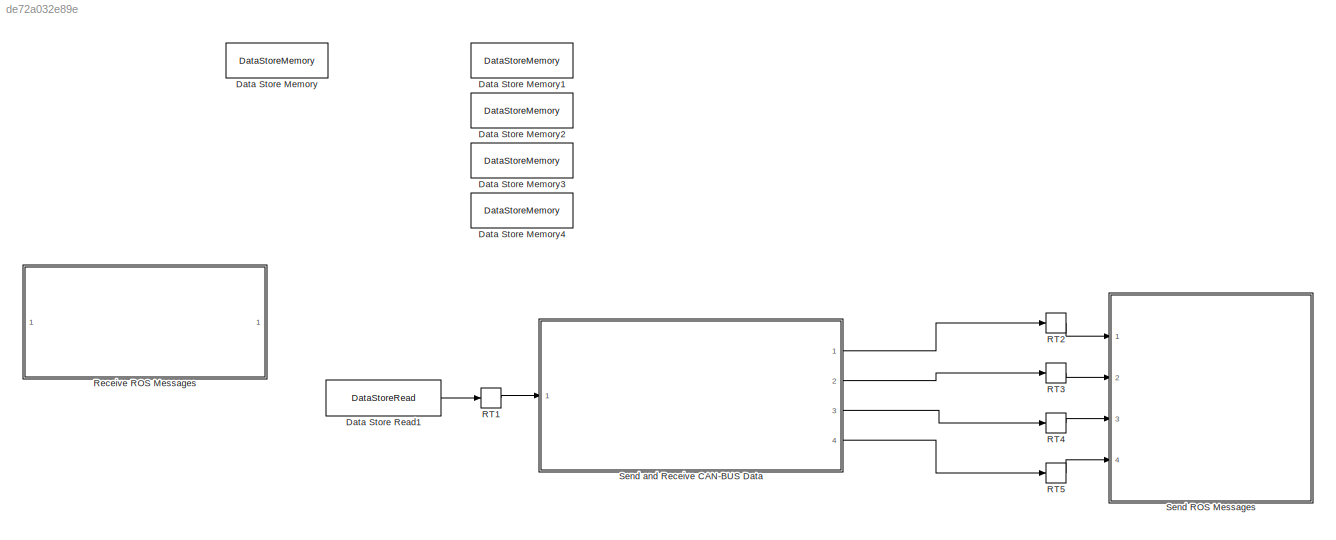
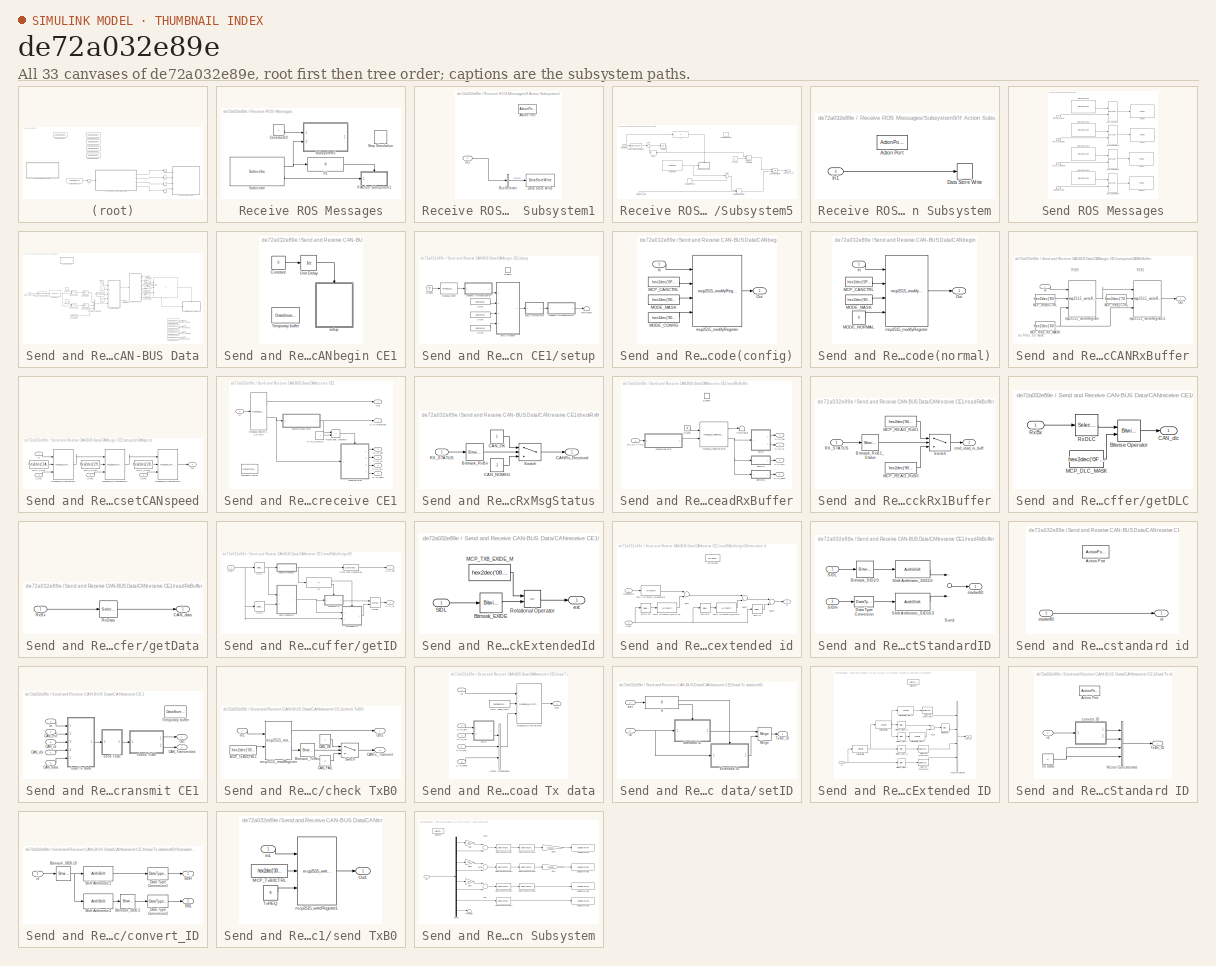
[diagram: thumbnail index - all 33 canvases of the model, root first then tree order]
MODEL slx_de72a032e89e
KIND model
CONFIG AbsTol = auto
CONFIG EnableMultiTasking = on
CONFIG FixedStep = 0.001
CONFIG MaxStep = auto
CONFIG MinStep = auto
CONFIG RelTol = 1e-3
CONFIG SampleTimeConstraint = Unconstrained
CONFIG Solver = FixedStepDiscrete
CONFIG SolverName = FixedStepDiscrete
CONFIG StartTime = 0.0
CONFIG StopTime = Inf
BLOCK [DataStoreMemory] Data Store Memory
  DataStoreName = COMMAND_VOLTAGE
  ReadBeforeWriteMsg = warning
  ShowAdditionalParam = off
  WriteAfterReadMsg = warning
  WriteAfterWriteMsg = warning
BLOCK [DataStoreMemory] Data Store Memory1
  DataStoreName = ROTOR_ANGLE
  RTWStateStorageClass = ExportedGlobal
  ReadBeforeWriteMsg = warning
  ShowAdditionalParam = off
  WriteAfterReadMsg = warning
  WriteAfterWriteMsg = warning
BLOCK [DataStoreMemory] Data Store Memory2
  DataStoreName = ROTATE_SPEED
  RTWStateStorageClass = ExportedGlobal
  ReadBeforeWriteMsg = warning
  ShowAdditionalParam = off
  WriteAfterReadMsg = warning
  WriteAfterWriteMsg = warning
BLOCK [DataStoreMemory] Data Store Memory3
  DataStoreName = ACTUAL_TORQUE
  RTWStateStorageClass = ExportedGlobal
  ReadBeforeWriteMsg = warning
  ShowAdditionalParam = off
  WriteAfterReadMsg = warning
  WriteAfterWriteMsg = warning
BLOCK [DataStoreMemory] Data Store Memory4
  DataStoreName = TEMPERATURE
  RTWStateStorageClass = ExportedGlobal
  ReadBeforeWriteMsg = warning
  ShowAdditionalParam = off
  WriteAfterReadMsg = warning
  WriteAfterWriteMsg = warning
BLOCK [DataStoreRead] Data Store Read1
  DataStoreName = COMMAND_VOLTAGE
  Ports = [0, 1]
BLOCK [RateTransition] RT1
  Deterministic = off
  OutPortSampleTime = 0.005
BLOCK [RateTransition] RT2
  Deterministic = off
  OutPortSampleTime = 0.01
BLOCK [RateTransition] RT3
  Deterministic = off
  OutPortSampleTime = 0.01
BLOCK [RateTransition] RT4
  Deterministic = off
  OutPortSampleTime = 0.01
BLOCK [RateTransition] RT5
  Deterministic = off
  OutPortSampleTime = 0.01
BLOCK [SubSystem] Receive ROS Messages
  Ports = []
  RequestExecContextInheritance = off
  SystemSampleTime = 0.001
  TreatAsAtomicUnit = on
BLOCK [Constant] Receive ROS Messages/Constant10
BLOCK [SubSystem] Receive ROS Messages/If Action Subsystem1
  Ports = [1, 0, 0, 0, 0, 0, 0, 1]
  RequestExecContextInheritance = off
  TreatAsAtomicUnit = on
BLOCK [ActionPort] Receive ROS Messages/If Action Subsystem1/Action Port
  ActionPortLabel = if(u1 == 1)
BLOCK [BusSelector] Receive ROS Messages/If Action Subsystem1/Bus Selector
  OutputAsBus = off
  OutputSignals = Data
  Ports = [1, 1]
BLOCK [DataStoreWrite] Receive ROS Messages/If Action Subsystem1/Data Store Write
  DataStoreName = COMMAND_VOLTAGE
  Ports = [1]
BLOCK [Inport] Receive ROS Messages/If Action Subsystem1/In1
  IconDisplay = Port number
BLOCK [If] Receive ROS Messages/If1
  IfExpression = u1 == 1
  Ports = [1, 1]
  ShowElse = off
BLOCK [Stop] Receive ROS Messages/Stop Simulation
BLOCK [Reference] Receive ROS Messages/Subscribe  REF=robotlib/Subscribe
  Ports = [0, 2]
  SourceBlock = robotlib/Subscribe
  SourceProductBaseCode = RR
  SourceProductName = ROS Toolbox
  SourceType = ROS Subscribe
BLOCK [SubSystem] Receive ROS Messages/Subsystem5
  Ports = [2, 1]
  RequestExecContextInheritance = off
BLOCK [Constant] Receive ROS Messages/Subsystem5/Constant
BLOCK [Reference] Receive ROS Messages/Subsystem5/Current Time  REF=robotlib/Current Time
  Ports = [0, 1]
  SourceBlock = robotlib/Current Time
  SourceProductBaseCode = RO
  SourceProductName = Robotics System Toolbox
  SourceType = robotics.slros.internal.block.CurrentTime
BLOCK [DataStoreMemory] Receive ROS Messages/Subsystem5/Data Store Memory
  DataStoreName = ROS_RECEIVED_TIME
  InitialValue = 10
  ReadBeforeWriteMsg = warning
  ShowAdditionalParam = off
  WriteAfterReadMsg = warning
  WriteAfterWriteMsg = warning
BLOCK [DataStoreRead] Receive ROS Messages/Subsystem5/Data Store Read
  DataStoreName = ROS_RECEIVED_TIME
  Ports = [0, 1]
BLOCK [DataTypeConversion] Receive ROS Messages/Subsystem5/Data Type Conversion6
  OutDataTypeStr = uint8
  RndMeth = Floor
  SaturateOnIntegerOverflow = off
BLOCK [Delay] Receive ROS Messages/Subsystem5/Delay
  DelayLength = 1
  InputPortMap = u0
  Ports = [1, 1]
BLOCK [Outport] Receive ROS Messages/Subsystem5/ERROR_FLAG
  IconDisplay = Port number
BLOCK [If] Receive ROS Messages/Subsystem5/If
  IfExpression = u1 == 1
  Ports = [1, 1]
  ShowElse = off
BLOCK [SubSystem] Receive ROS Messages/Subsystem5/If Action Subsystem
  Ports = [1, 0, 0, 0, 0, 0, 0, 1]
  RequestExecContextInheritance = off
  TreatAsAtomicUnit = on
BLOCK [ActionPort] Receive ROS Messages/Subsystem5/If Action Subsystem/Action Port
  ActionPortLabel = if(u1 == 1)
BLOCK [DataStoreWrite] Receive ROS Messages/Subsystem5/If Action Subsystem/Data Store Write
  DataStoreName = ROS_RECEIVED_TIME
  Ports = [1]
BLOCK [Inport] Receive ROS Messages/Subsystem5/If Action Subsystem/In1
  IconDisplay = Port number
BLOCK [Logic] Receive ROS Messages/Subsystem5/Logical Operator4
  AllPortsSameDT = off
  OutDataTypeStr = boolean
  Ports = [2, 1]
BLOCK [Inport] Receive ROS Messages/Subsystem5/RECEIVED
  IconDisplay = Port number
  Port = 2
BLOCK [RelationalOperator] Receive ROS Messages/Subsystem5/Relational Operator
  InputSameDT = off
  Operator = >
  OutDataTypeStr = boolean
  Ports = [2, 1]
  RndMeth = Simplest
BLOCK [RelationalOperator] Receive ROS Messages/Subsystem5/Relational Operator1
  InputSameDT = off
  Operator = >
  OutDataTypeStr = boolean
  Ports = [2, 1]
  RndMeth = Simplest
BLOCK [Saturate] Receive ROS Messages/Subsystem5/Saturation
  InputPortMap = u0
  LowerLimit = 0
  Ports = [1, 1]
  UpperLimit = 2
BLOCK [Sum] Receive ROS Messages/Subsystem5/Sum
  IconShape = round
  InputSameDT = off
  Inputs = |++
  OutDataTypeStr = Inherit: Inherit via internal rule
  Ports = [2, 1]
  SaturateOnIntegerOverflow = off
BLOCK [Sum] Receive ROS Messages/Subsystem5/Sum1
  IconShape = round
  InputSameDT = off
  Inputs = |+-
  OutDataTypeStr = Inherit: Inherit via internal rule
  Ports = [2, 1]
  SaturateOnIntegerOverflow = off
BLOCK [Inport] Receive ROS Messages/Subsystem5/TIMEOUT_LIMIT
  IconDisplay = Port number
BLOCK [SubSystem] Send ROS Messages
  Ports = [4]
  RequestExecContextInheritance = off
  SystemSampleTime = 0.01
  TreatAsAtomicUnit = on
BLOCK [Inport] Send ROS Messages/ACTUAL_TORQUE
  IconDisplay = Port number
  Port = 3
BLOCK [Reference] Send ROS Messages/Blank Message  REF=robotlib/Blank Message
  Ports = [0, 1]
  SourceBlock = robotlib/Blank Message
  SourceProductBaseCode = RR
  SourceProductName = ROS Toolbox
  SourceType = ROS Blank Message
BLOCK [Reference] Send ROS Messages/Blank Message1  REF=robotlib/Blank Message
  Ports = [0, 1]
  SourceBlock = robotlib/Blank Message
  SourceProductBaseCode = RR
  SourceProductName = ROS Toolbox
  SourceType = ROS Blank Message
BLOCK [Reference] Send ROS Messages/Blank Message2  REF=robotlib/Blank Message
  Ports = [0, 1]
  SourceBlock = robotlib/Blank Message
  SourceProductBaseCode = RR
  SourceProductName = ROS Toolbox
  SourceType = ROS Blank Message
BLOCK [Reference] Send ROS Messages/Blank Message3  REF=robotlib/Blank Message
  Ports = [0, 1]
  SourceBlock = robotlib/Blank Message
  SourceProductBaseCode = RR
  SourceProductName = ROS Toolbox
  SourceType = ROS Blank Message
BLOCK [BusAssignment] Send ROS Messages/Bus Assignment
  AssignedSignals = Data
  Ports = [2, 1]
BLOCK [BusAssignment] Send ROS Messages/Bus Assignment1
  AssignedSignals = Data
  Ports = [2, 1]
BLOCK [BusAssignment] Send ROS Messages/Bus Assignment2
  AssignedSignals = Data
  Ports = [2, 1]
BLOCK [BusAssignment] Send ROS Messages/Bus Assignment3
  AssignedSignals = Data
  Ports = [2, 1]
BLOCK [Reference] Send ROS Messages/Publish  REF=robotlib/Publish
  Ports = [1]
  SourceBlock = robotlib/Publish
  SourceProductBaseCode = RR
  SourceProductName = ROS Toolbox
  SourceType = ROS Publish
BLOCK [Reference] Send ROS Messages/Publish1  REF=robotlib/Publish
  Ports = [1]
  SourceBlock = robotlib/Publish
  SourceProductBaseCode = RR
  SourceProductName = ROS Toolbox
  SourceType = ROS Publish
BLOCK [Reference] Send ROS Messages/Publish2  REF=robotlib/Publish
  Ports = [1]
  SourceBlock = robotlib/Publish
  SourceProductBaseCode = RR
  SourceProductName = ROS Toolbox
  SourceType = ROS Publish
BLOCK [Reference] Send ROS Messages/Publish3  REF=robotlib/Publish
  Ports = [1]
  SourceBlock = robotlib/Publish
  SourceProductBaseCode = RR
  SourceProductName = ROS Toolbox
  SourceType = ROS Publish
BLOCK [Inport] Send ROS Messages/ROTATE_SPEED
  IconDisplay = Port number
  Port = 2
BLOCK [Inport] Send ROS Messages/ROTOR_ANGLE
  IconDisplay = Port number
BLOCK [Inport] Send ROS Messages/TEMPERATURE
  IconDisplay = Port number
  Port = 4
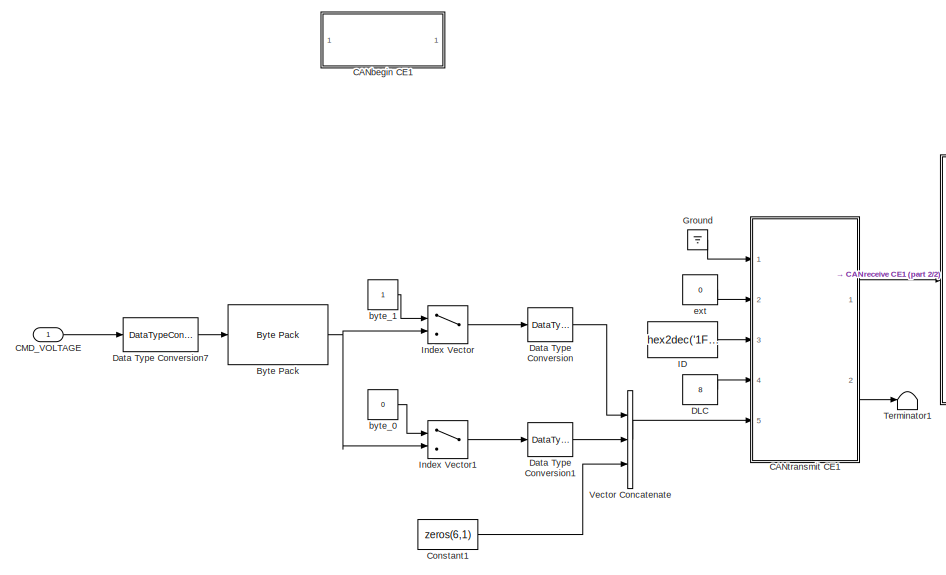
[diagram: Send and Receive CAN-BUS Data - part 1/2, middle left region]
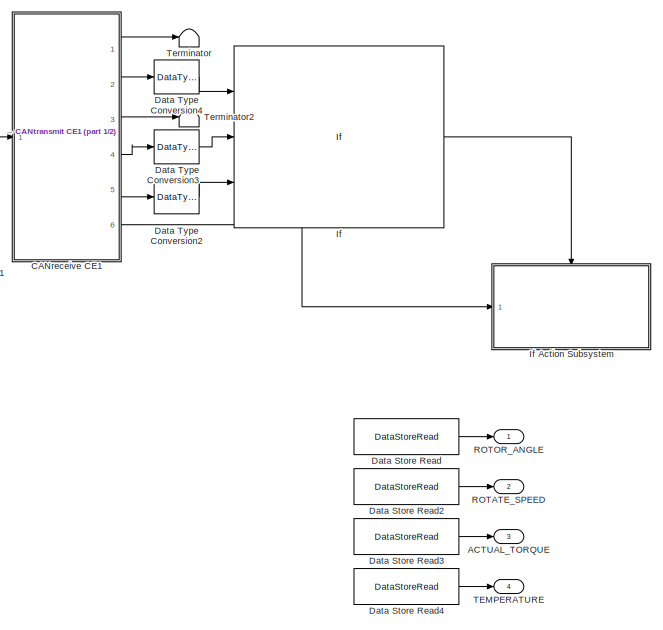
[diagram: Send and Receive CAN-BUS Data - part 2/2, right side, full height]
BLOCK [SubSystem] Send and Receive CAN-BUS Data
  Ports = [1, 4]
  RequestExecContextInheritance = off
  SystemSampleTime = 0.005
  TreatAsAtomicUnit = on
BLOCK [Outport] Send and Receive CAN-BUS Data/ACTUAL_TORQUE
  IconDisplay = Port number
  Port = 3
BLOCK [Reference] Send and Receive CAN-BUS Data/Byte Pack  REF=svdutilitieslib/Byte Pack
  Ports = [1, 1]
  SourceBlock = svdutilitieslib/Byte Pack
  SourceProductBaseCode = ECCORTEXA
  SourceProductName = Embedded Coder Support Package for ARM Cortex-A Processors
  SourceType = Byte pack
BLOCK [SubSystem] Send and Receive CAN-BUS Data/CANbegin CE1
  Ports = []
  RTWSystemCode = Nonreusable function
  RequestExecContextInheritance = off
  TreatAsAtomicUnit = on
BLOCK [Constant] Send and Receive CAN-BUS Data/CANbegin CE1/Constant
  OutDataTypeStr = boolean
  SampleTime = -1
  Value = 0
BLOCK [DataStoreMemory] Send and Receive CAN-BUS Data/CANbegin CE1/Temporary buffer
  DataStoreName = temp_1byte
  OutDataTypeStr = uint8
  ReadBeforeWriteMsg = warning
  ShowAdditionalParam = off
  SignalType = real
  WriteAfterReadMsg = warning
  WriteAfterWriteMsg = warning
BLOCK [UnitDelay] Send and Receive CAN-BUS Data/CANbegin CE1/Unit Delay
  HasFrameUpgradeWarning = on
  InitialCondition = 1
  SampleTime = -1
BLOCK [SubSystem] Send and Receive CAN-BUS Data/CANbegin CE1/setup
  Ports = [0, 0, 1]
  RTWFileNameOpts = Use subsystem name
  RTWSystemCode = Nonreusable function
  RequestExecContextInheritance = off
  TreatAsAtomicUnit = on
BLOCK [Constant] Send and Receive CAN-BUS Data/CANbegin CE1/setup/CNF1
  OutDataTypeStr = uint8
  Value = address2A
BLOCK [Constant] Send and Receive CAN-BUS Data/CANbegin CE1/setup/CNF2
  OutDataTypeStr = uint8
  Value = address29
BLOCK [Constant] Send and Receive CAN-BUS Data/CANbegin CE1/setup/CNF3
  OutDataTypeStr = uint8
  Value = address28
BLOCK [EnablePort] Send and Receive CAN-BUS Data/CANbegin CE1/setup/Enable
  Ports = []
BLOCK [Ground] Send and Receive CAN-BUS Data/CANbegin CE1/setup/Ground
BLOCK [Terminator] Send and Receive CAN-BUS Data/CANbegin CE1/setup/Terminator
BLOCK [SubSystem] Send and Receive CAN-BUS Data/CANbegin CE1/setup/changeCANmode(config)
  Ports = [1, 1]
  RequestExecContextInheritance = off
  TreatAsAtomicUnit = on
BLOCK [Inport] Send and Receive CAN-BUS Data/CANbegin CE1/setup/changeCANmode(config)/In
  IconDisplay = Port number
BLOCK [Constant] Send and Receive CAN-BUS Data/CANbegin CE1/setup/changeCANmode(config)/MCP_CANCTRL
  OutDataTypeStr = uint8
  Value = hex2dec('0F')
BLOCK [Constant] Send and Receive CAN-BUS Data/CANbegin CE1/setup/changeCANmode(config)/MODE_CONFIG
  OutDataTypeStr = uint8
  Value = hex2dec('80')
BLOCK [Constant] Send and Receive CAN-BUS Data/CANbegin CE1/setup/changeCANmode(config)/MODE_MASK
  OutDataTypeStr = uint8
  Value = hex2dec('E0')
BLOCK [Outport] Send and Receive CAN-BUS Data/CANbegin CE1/setup/changeCANmode(config)/Out
  IconDisplay = Port number
BLOCK [Reference] Send and Receive CAN-BUS Data/CANbegin CE1/setup/changeCANmode(config)/mcp2515_modifyRegister  REF=mcp2515lib/CAN application/mcp2515 driver CE1/mcp2515_modifyRegister
  Ports = [4, 1]
  SourceBlock = mcp2515lib/CAN application/mcp2515 driver CE1/mcp2515_modifyRegister
  SourceProductName = CAN device driver for mcp2515
  SourceType = SubSystem
BLOCK [SubSystem] Send and Receive CAN-BUS Data/CANbegin CE1/setup/changeCANmode(normal)
  Ports = [1, 1]
  RequestExecContextInheritance = off
  TreatAsAtomicUnit = on
BLOCK [Inport] Send and Receive CAN-BUS Data/CANbegin CE1/setup/changeCANmode(normal)/In
  IconDisplay = Port number
BLOCK [Constant] Send and Receive CAN-BUS Data/CANbegin CE1/setup/changeCANmode(normal)/MCP_CANCTRL
  OutDataTypeStr = uint8
  Value = hex2dec('0F')
BLOCK [Constant] Send and Receive CAN-BUS Data/CANbegin CE1/setup/changeCANmode(normal)/MODE_MASK
  OutDataTypeStr = uint8
  Value = hex2dec('E0')
BLOCK [Constant] Send and Receive CAN-BUS Data/CANbegin CE1/setup/changeCANmode(normal)/MODE_NORMAL
  OutDataTypeStr = uint8
  Value = 0
BLOCK [Outport] Send and Receive CAN-BUS Data/CANbegin CE1/setup/changeCANmode(normal)/Out
  IconDisplay = Port number
BLOCK [Reference] Send and Receive CAN-BUS Data/CANbegin CE1/setup/changeCANmode(normal)/mcp2515_modifyRegister  REF=mcp2515lib/CAN application/mcp2515 driver CE1/mcp2515_modifyRegister
  Ports = [4, 1]
  SourceBlock = mcp2515lib/CAN application/mcp2515 driver CE1/mcp2515_modifyRegister
  SourceProductName = CAN device driver for mcp2515
  SourceType = SubSystem
BLOCK [Reference] Send and Receive CAN-BUS Data/CANbegin CE1/setup/mcp2515_reset  REF=mcp2515lib/CAN application/mcp2515 driver CE1/mcp2515_reset
  Ports = [1, 1]
  SourceBlock = mcp2515lib/CAN application/mcp2515 driver CE1/mcp2515_reset
  SourceProductName = CAN device driver for mcp2515
  SourceType = SubSystem
BLOCK [SubSystem] Send and Receive CAN-BUS Data/CANbegin CE1/setup/setCANRxBuffer
  Ports = [1, 1]
  RequestExecContextInheritance = off
  TreatAsAtomicUnit = on
BLOCK [Inport] Send and Receive CAN-BUS Data/CANbegin CE1/setup/setCANRxBuffer/In
  IconDisplay = Port number
BLOCK [Constant] Send and Receive CAN-BUS Data/CANbegin CE1/setup/setCANRxBuffer/MCP_RXB0CTRL
  OutDataTypeStr = uint8
  Value = hex2dec('60')
BLOCK [Constant] Send and Receive CAN-BUS Data/CANbegin CE1/setup/setCANRxBuffer/MCP_RXB1CTRL
  OutDataTypeStr = uint8
  Value = hex2dec('70')
BLOCK [Constant] Send and Receive CAN-BUS Data/CANbegin CE1/setup/setCANRxBuffer/MCP_RXB_RX_MASK
  OutDataTypeStr = uint8
  Value = hex2dec('60')
BLOCK [Outport] Send and Receive CAN-BUS Data/CANbegin CE1/setup/setCANRxBuffer/Out
  IconDisplay = Port number
BLOCK [Reference] Send and Receive CAN-BUS Data/CANbegin CE1/setup/setCANRxBuffer/mcp2515_writeRegister  REF=mcp2515lib/CAN application/mcp2515 driver CE1/mcp2515_writeRegister
  Ports = [3, 1]
  SourceBlock = mcp2515lib/CAN application/mcp2515 driver CE1/mcp2515_writeRegister
  SourceProductName = CAN device driver for mcp2515
  SourceType = SubSystem
BLOCK [Reference] Send and Receive CAN-BUS Data/CANbegin CE1/setup/setCANRxBuffer/mcp2515_writeRegister1  REF=mcp2515lib/CAN application/mcp2515 driver CE1/mcp2515_writeRegister
  Ports = [3, 1]
  SourceBlock = mcp2515lib/CAN application/mcp2515 driver CE1/mcp2515_writeRegister
  SourceProductName = CAN device driver for mcp2515
  SourceType = SubSystem
BLOCK [SubSystem] Send and Receive CAN-BUS Data/CANbegin CE1/setup/setCANspeed
  Ports = [4, 1]
  RequestExecContextInheritance = off
  TreatAsAtomicUnit = on
BLOCK [Inport] Send and Receive CAN-BUS Data/CANbegin CE1/setup/setCANspeed/CNF1
  IconDisplay = Port number
  Port = 2
BLOCK [Inport] Send and Receive CAN-BUS Data/CANbegin CE1/setup/setCANspeed/CNF2
  IconDisplay = Port number
  Port = 3
BLOCK [Inport] Send and Receive CAN-BUS Data/CANbegin CE1/setup/setCANspeed/CNF3
  IconDisplay = Port number
  Port = 4
BLOCK [Inport] Send and Receive CAN-BUS Data/CANbegin CE1/setup/setCANspeed/In
  IconDisplay = Port number
BLOCK [Constant] Send and Receive CAN-BUS Data/CANbegin CE1/setup/setCANspeed/MCP_CNF1
  OutDataTypeStr = uint8
  Value = hex2dec('2A')
BLOCK [Constant] Send and Receive CAN-BUS Data/CANbegin CE1/setup/setCANspeed/MCP_CNF2
  OutDataTypeStr = uint8
  Value = hex2dec('29')
BLOCK [Constant] Send and Receive CAN-BUS Data/CANbegin CE1/setup/setCANspeed/MCP_CNF3
  OutDataTypeStr = uint8
  Value = hex2dec('28')
BLOCK [Outport] Send and Receive CAN-BUS Data/CANbegin CE1/setup/setCANspeed/Out
  IconDisplay = Port number
BLOCK [Reference] Send and Receive CAN-BUS Data/CANbegin CE1/setup/setCANspeed/mcp2515_writeRegister  REF=mcp2515lib/CAN application/mcp2515 driver CE1/mcp2515_writeRegister
  Ports = [3, 1]
  SourceBlock = mcp2515lib/CAN application/mcp2515 driver CE1/mcp2515_writeRegister
  SourceProductName = CAN device driver for mcp2515
  SourceType = SubSystem
BLOCK [Reference] Send and Receive CAN-BUS Data/CANbegin CE1/setup/setCANspeed/mcp2515_writeRegister1  REF=mcp2515lib/CAN application/mcp2515 driver CE1/mcp2515_writeRegister
  Ports = [3, 1]
  SourceBlock = mcp2515lib/CAN application/mcp2515 driver CE1/mcp2515_writeRegister
  SourceProductName = CAN device driver for mcp2515
  SourceType = SubSystem
BLOCK [Reference] Send and Receive CAN-BUS Data/CANbegin CE1/setup/setCANspeed/mcp2515_writeRegister2  REF=mcp2515lib/CAN application/mcp2515 driver CE1/mcp2515_writeRegister
  Ports = [3, 1]
  SourceBlock = mcp2515lib/CAN application/mcp2515 driver CE1/mcp2515_writeRegister
  SourceProductName = CAN device driver for mcp2515
  SourceType = SubSystem
BLOCK [SubSystem] Send and Receive CAN-BUS Data/CANreceive CE1
  Ports = [1, 6]
  RTWSystemCode = Reusable function
  RequestExecContextInheritance = off
  TreatAsAtomicUnit = on
BLOCK [Constant] Send and Receive CAN-BUS Data/CANreceive CE1/CAN_NOMSG
  OutDataTypeStr = int8
  Value = -1
BLOCK [Outport] Send and Receive CAN-BUS Data/CANreceive CE1/CAN_Received
  IconDisplay = Port number
  Port = 2
BLOCK [Outport] Send and Receive CAN-BUS Data/CANreceive CE1/CAN_data
  IconDisplay = Port number
  Port = 6
BLOCK [Outport] Send and Receive CAN-BUS Data/CANreceive CE1/CAN_dlc
  IconDisplay = Port number
  Port = 5
BLOCK [Outport] Send and Receive CAN-BUS Data/CANreceive CE1/CAN_ext
  IconDisplay = Port number
  Port = 3
BLOCK [Outport] Send and Receive CAN-BUS Data/CANreceive CE1/CAN_id
  IconDisplay = Port number
  Port = 4
BLOCK [Inport] Send and Receive CAN-BUS Data/CANreceive CE1/In
  IconDisplay = Port number
BLOCK [Outport] Send and Receive CAN-BUS Data/CANreceive CE1/Out
  IconDisplay = Port number
BLOCK [RelationalOperator] Send and Receive CAN-BUS Data/CANreceive CE1/Relational Operator
  InputSameDT = off
  Operator = ~=
  OutDataTypeStr = boolean
  Ports = [2, 1]
BLOCK [DataStoreMemory] Send and Receive CAN-BUS Data/CANreceive CE1/Temporary buffer
  DataStoreName = temp_1byte
  OutDataTypeStr = uint8
  ReadBeforeWriteMsg = warning
  ShowAdditionalParam = off
  SignalType = real
  WriteAfterReadMsg = warning
  WriteAfterWriteMsg = warning
BLOCK [SubSystem] Send and Receive CAN-BUS Data/CANreceive CE1/checkRxMsgStatus
  Ports = [1, 1]
  RequestExecContextInheritance = off
  TreatAsAtomicUnit = on
BLOCK [Reference] Send and Receive CAN-BUS Data/CANreceive CE1/checkRxMsgStatus/Bitmask_RxBn  REF=simulink/Logic and Bit
Operations/Bitwise
Operator
  Ports = [1, 1]
  SourceBlock = simulink/Logic and Bit\nOperations/Bitwise\nOperator
  SourceProductBaseCode = SL
  SourceProductName = Simulink
  SourceType = Bitwise Operator
BLOCK [Outport] Send and Receive CAN-BUS Data/CANreceive CE1/checkRxMsgStatus/CANRx_Received
  IconDisplay = Port number
BLOCK [Constant] Send and Receive CAN-BUS Data/CANreceive CE1/checkRxMsgStatus/CAN_NOMSG
  OutDataTypeStr = int8
  Value = -1
BLOCK [Constant] Send and Receive CAN-BUS Data/CANreceive CE1/checkRxMsgStatus/CAN_OK
  OutDataTypeStr = int8
BLOCK [Inport] Send and Receive CAN-BUS Data/CANreceive CE1/checkRxMsgStatus/RX_STATUS
  IconDisplay = Port number
BLOCK [Switch] Send and Receive CAN-BUS Data/CANreceive CE1/checkRxMsgStatus/Switch
  Criteria = u2 > Threshold
  InputSameDT = off
  SaturateOnIntegerOverflow = off
BLOCK [Reference] Send and Receive CAN-BUS Data/CANreceive CE1/mcp2515_read_RX_STATUS  REF=mcp2515lib/CAN application/mcp2515 driver CE1/mcp2515_read_RX_STATUS
  Ports = [1, 2]
  SourceBlock = mcp2515lib/CAN application/mcp2515 driver CE1/mcp2515_read_RX_STATUS
  SourceProductName = CAN device driver for mcp2515
  SourceType = SubSystem
BLOCK [SubSystem] Send and Receive CAN-BUS Data/CANreceive CE1/readRxBuffer
  Ports = [1, 4, 1]
  RequestExecContextInheritance = off
  TreatAsAtomicUnit = on
BLOCK [Outport] Send and Receive CAN-BUS Data/CANreceive CE1/readRxBuffer/CAN_data
  IconDisplay = Port number
  Port = 4
BLOCK [Outport] Send and Receive CAN-BUS Data/CANreceive CE1/readRxBuffer/CAN_dlc
  IconDisplay = Port number
  Port = 3
BLOCK [Outport] Send and Receive CAN-BUS Data/CANreceive CE1/readRxBuffer/CAN_ext
  IconDisplay = Port number
BLOCK [Outport] Send and Receive CAN-BUS Data/CANreceive CE1/readRxBuffer/CAN_id
  IconDisplay = Port number
  Port = 2
BLOCK [EnablePort] Send and Receive CAN-BUS Data/CANreceive CE1/readRxBuffer/Enable
  Ports = []
BLOCK [Ground] Send and Receive CAN-BUS Data/CANreceive CE1/readRxBuffer/Ground
BLOCK [Inport] Send and Receive CAN-BUS Data/CANreceive CE1/readRxBuffer/RX_STATUS
  IconDisplay = Port number
BLOCK [Terminator] Send and Receive CAN-BUS Data/CANreceive CE1/readRxBuffer/Terminator
BLOCK [SubSystem] Send and Receive CAN-BUS Data/CANreceive CE1/readRxBuffer/checkRx1Buffer
  Ports = [1, 1]
  RequestExecContextInheritance = off
  TreatAsAtomicUnit = on
BLOCK [Reference] Send and Receive CAN-BUS Data/CANreceive CE1/readRxBuffer/checkRx1Buffer/Bitmask_RxB1_Status  REF=simulink/Logic and Bit
Operations/Bitwise
Operator
  Ports = [1, 1]
  SourceBlock = simulink/Logic and Bit\nOperations/Bitwise\nOperator
  SourceProductBaseCode = SL
  SourceProductName = Simulink
  SourceType = Bitwise Operator
BLOCK [Constant] Send and Receive CAN-BUS Data/CANreceive CE1/readRxBuffer/checkRx1Buffer/MCP_READ_RxB0
  OutDataTypeStr = uint8
  Value = hex2dec('90')
BLOCK [Constant] Send and Receive CAN-BUS Data/CANreceive CE1/readRxBuffer/checkRx1Buffer/MCP_READ_RxB1
  OutDataTypeStr = uint8
  Value = hex2dec('94')
BLOCK [Inport] Send and Receive CAN-BUS Data/CANreceive CE1/readRxBuffer/checkRx1Buffer/RX_STATUS
  IconDisplay = Port number
BLOCK [Switch] Send and Receive CAN-BUS Data/CANreceive CE1/readRxBuffer/checkRx1Buffer/Switch
  Criteria = u2 > Threshold
  InputSameDT = off
  SaturateOnIntegerOverflow = off
BLOCK [Outport] Send and Receive CAN-BUS Data/CANreceive CE1/readRxBuffer/checkRx1Buffer/cmd_read_rx_buff
  IconDisplay = Port number
BLOCK [SubSystem] Send and Receive CAN-BUS Data/CANreceive CE1/readRxBuffer/getDLC
  Ports = [1, 1]
  RequestExecContextInheritance = off
  TreatAsAtomicUnit = on
BLOCK [Reference] Send and Receive CAN-BUS Data/CANreceive CE1/readRxBuffer/getDLC/Bitwise Operator  REF=simulink/Logic and Bit
Operations/Bitwise
Operator
  Ports = [2, 1]
  SourceBlock = simulink/Logic and Bit\nOperations/Bitwise\nOperator
  SourceProductBaseCode = SL
  SourceProductName = Simulink
  SourceType = Bitwise Operator
BLOCK [Outport] Send and Receive CAN-BUS Data/CANreceive CE1/readRxBuffer/getDLC/CAN_dlc
  IconDisplay = Port number
BLOCK [Constant] Send and Receive CAN-BUS Data/CANreceive CE1/readRxBuffer/getDLC/MCP_DLC_MASK
  OutDataTypeStr = uint8
  Value = hex2dec('0F')
BLOCK [Inport] Send and Receive CAN-BUS Data/CANreceive CE1/readRxBuffer/getDLC/RxBx
  IconDisplay = Port number
BLOCK [Selector] Send and Receive CAN-BUS Data/CANreceive CE1/readRxBuffer/getDLC/RxDLC
  IndexMode = Zero-based
  IndexOptions = Index vector (dialog)
  Indices = 4
  InputPortWidth = 13
  OutputSizes = 1
  Ports = [1, 1]
BLOCK [SubSystem] Send and Receive CAN-BUS Data/CANreceive CE1/readRxBuffer/getData
  Ports = [1, 1]
  RequestExecContextInheritance = off
  TreatAsAtomicUnit = on
BLOCK [Outport] Send and Receive CAN-BUS Data/CANreceive CE1/readRxBuffer/getData/CAN_data
  IconDisplay = Port number
BLOCK [Inport] Send and Receive CAN-BUS Data/CANreceive CE1/readRxBuffer/getData/RxBx
  IconDisplay = Port number
BLOCK [Selector] Send and Receive CAN-BUS Data/CANreceive CE1/readRxBuffer/getData/RxData
  IndexMode = Zero-based
  IndexOptions = Index vector (dialog)
  Indices = [5:12]
  InputPortWidth = 13
  OutputSizes = 1
  Ports = [1, 1]
BLOCK [SubSystem] Send and Receive CAN-BUS Data/CANreceive CE1/readRxBuffer/getID
  Ports = [1, 2]
  RTWSystemCode = Inline
  RequestExecContextInheritance = off
  TreatAsAtomicUnit = on
BLOCK [Outport] Send and Receive CAN-BUS Data/CANreceive CE1/readRxBuffer/getID/CAN_ext
  IconDisplay = Port number
BLOCK [Outport] Send and Receive CAN-BUS Data/CANreceive CE1/readRxBuffer/getID/CAN_id
  IconDisplay = Port number
  Port = 2
BLOCK [DataTypeConversion] Send and Receive CAN-BUS Data/CANreceive CE1/readRxBuffer/getID/Data Type Conversion
  OutDataTypeStr = uint8
  RndMeth = Simplest
  SaturateOnIntegerOverflow = off
BLOCK [If] Send and Receive CAN-BUS Data/CANreceive CE1/readRxBuffer/getID/If1
  IfExpression = u1 == 1
  Ports = [1, 2]
BLOCK [Merge] Send and Receive CAN-BUS Data/CANreceive CE1/readRxBuffer/getID/Merge
  Ports = [2, 1]
BLOCK [Inport] Send and Receive CAN-BUS Data/CANreceive CE1/readRxBuffer/getID/RxBn
  IconDisplay = Port number
BLOCK [Selector] Send and Receive CAN-BUS Data/CANreceive CE1/readRxBuffer/getID/SIDH
  IndexMode = Zero-based
  IndexOptions = Index vector (dialog)
  Indices = 0
  InputPortWidth = 13
  OutputSizes = 1
  Ports = [1, 1]
BLOCK [Selector] Send and Receive CAN-BUS Data/CANreceive CE1/readRxBuffer/getID/SIDL
  IndexMode = Zero-based
  IndexOptions = Index vector (dialog)
  Indices = 1
  InputPortWidth = 13
  OutputSizes = 1
  Ports = [1, 1]
BLOCK [SubSystem] Send and Receive CAN-BUS Data/CANreceive CE1/readRxBuffer/getID/checkExtendedId
  Ports = [1, 1]
  RequestExecContextInheritance = off
BLOCK [Reference] Send and Receive CAN-BUS Data/CANreceive CE1/readRxBuffer/getID/checkExtendedId/Bitmask_EXIDE  REF=simulink/Logic and Bit
Operations/Bitwise
Operator
  Ports = [1, 1]
  SourceBlock = simulink/Logic and Bit\nOperations/Bitwise\nOperator
  SourceProductBaseCode = SL
  SourceProductName = Simulink
  SourceType = Bitwise Operator
BLOCK [Constant] Send and Receive CAN-BUS Data/CANreceive CE1/readRxBuffer/getID/checkExtendedId/MCP_TXB_EXIDE_M
  OutDataTypeStr = uint8
  Value = hex2dec('08')
BLOCK [RelationalOperator] Send and Receive CAN-BUS Data/CANreceive CE1/readRxBuffer/getID/checkExtendedId/Relational Operator
  InputSameDT = off
  Operator = ==
  OutDataTypeStr = boolean
  Ports = [2, 1]
BLOCK [Inport] Send and Receive CAN-BUS Data/CANreceive CE1/readRxBuffer/getID/checkExtendedId/SIDL
  IconDisplay = Port number
BLOCK [Outport] Send and Receive CAN-BUS Data/CANreceive CE1/readRxBuffer/getID/checkExtendedId/ext
  IconDisplay = Port number
BLOCK [SubSystem] Send and Receive CAN-BUS Data/CANreceive CE1/readRxBuffer/getID/extended id
  Ports = [2, 1, 0, 0, 0, 0, 0, 1]
  RTWSystemCode = Inline
  RequestExecContextInheritance = off
  TreatAsAtomicUnit = on
BLOCK [ActionPort] Send and Receive CAN-BUS Data/CANreceive CE1/readRxBuffer/getID/extended id/Action Port
  ActionPortLabel = if(u1 == 1)
BLOCK [Selector] Send and Receive CAN-BUS Data/CANreceive CE1/readRxBuffer/getID/extended id/EID15-8
  IndexMode = Zero-based
  IndexOptions = Index vector (dialog)
  Indices = 2
  InputPortWidth = 13
  OutputSizes = 1
  Ports = [1, 1]
BLOCK [Selector] Send and Receive CAN-BUS Data/CANreceive CE1/readRxBuffer/getID/extended id/EID17-16
  IndexMode = Zero-based
  IndexOptions = Index vector (dialog)
  Indices = 1
  InputPortWidth = 13
  OutputSizes = 1
  Ports = [1, 1]
BLOCK [Selector] Send and Receive CAN-BUS Data/CANreceive CE1/readRxBuffer/getID/extended id/EID7-0
  IndexMode = Zero-based
  IndexOptions = Index vector (dialog)
  Indices = 3
  InputPortWidth = 13
  OutputSizes = 1
  Ports = [1, 1]
BLOCK [Inport] Send and Receive CAN-BUS Data/CANreceive CE1/readRxBuffer/getID/extended id/RxBn
  IconDisplay = Port number
  Port = 2
BLOCK [ArithShift] Send and Receive CAN-BUS Data/CANreceive CE1/readRxBuffer/getID/extended id/Shift Arithmetic_EID15-8
  BitShiftDirection = Left
  BitShiftNumber = 8
  InputPortMap = u0
  Ports = [1, 1]
BLOCK [ArithShift] Send and Receive CAN-BUS Data/CANreceive CE1/readRxBuffer/getID/extended id/Shift Arithmetic_EID17-16
  BitShiftDirection = Left
  BitShiftNumber = 16
  InputPortMap = u0
  Ports = [1, 1]
BLOCK [ArithShift] Send and Receive CAN-BUS Data/CANreceive CE1/readRxBuffer/getID/extended id/Shift Arithmetic_standardID
  BitShiftDirection = Left
  BitShiftNumber = 18
  InputPortMap = u0
  Ports = [1, 1]
BLOCK [Sum] Send and Receive CAN-BUS Data/CANreceive CE1/readRxBuffer/getID/extended id/Sum
  InputSameDT = off
  OutDataTypeStr = Inherit: Inherit via internal rule
  Ports = [2, 1]
  SaturateOnIntegerOverflow = off
BLOCK [Sum] Send and Receive CAN-BUS Data/CANreceive CE1/readRxBuffer/getID/extended id/Sum1
  InputSameDT = off
  OutDataTypeStr = Inherit: Inherit via internal rule
  Ports = [2, 1]
  SaturateOnIntegerOverflow = off
BLOCK [Sum] Send and Receive CAN-BUS Data/CANreceive CE1/readRxBuffer/getID/extended id/Sum2
  InputSameDT = off
  OutDataTypeStr = Inherit: Inherit via internal rule
  Ports = [2, 1]
  SaturateOnIntegerOverflow = off
BLOCK [Outport] Send and Receive CAN-BUS Data/CANreceive CE1/readRxBuffer/getID/extended id/id
  IconDisplay = Port number
BLOCK [Inport] Send and Receive CAN-BUS Data/CANreceive CE1/readRxBuffer/getID/extended id/standardID
  IconDisplay = Port number
BLOCK [SubSystem] Send and Receive CAN-BUS Data/CANreceive CE1/readRxBuffer/getID/getStandardID
  Ports = [2, 1]
  RequestExecContextInheritance = off
BLOCK [Reference] Send and Receive CAN-BUS Data/CANreceive CE1/readRxBuffer/getID/getStandardID/Bitmask_SID2-0  REF=simulink/Logic and Bit
Operations/Bitwise
Operator
  Ports = [1, 1]
  SourceBlock = simulink/Logic and Bit\nOperations/Bitwise\nOperator
  SourceProductBaseCode = SL
  SourceProductName = Simulink
  SourceType = Bitwise Operator
BLOCK [DataTypeConversion] Send and Receive CAN-BUS Data/CANreceive CE1/readRxBuffer/getID/getStandardID/Data Type Conversion
  OutDataTypeStr = uint32
  RndMeth = Floor
  SaturateOnIntegerOverflow = off
BLOCK [Inport] Send and Receive CAN-BUS Data/CANreceive CE1/readRxBuffer/getID/getStandardID/SIDH
  IconDisplay = Port number
  Port = 2
BLOCK [Inport] Send and Receive CAN-BUS Data/CANreceive CE1/readRxBuffer/getID/getStandardID/SIDL
  IconDisplay = Port number
BLOCK [ArithShift] Send and Receive CAN-BUS Data/CANreceive CE1/readRxBuffer/getID/getStandardID/Shift Arithmetic_SID10-3
  BitShiftDirection = Left
  BitShiftNumber = 3
  InputPortMap = u0
  Ports = [1, 1]
BLOCK [ArithShift] Send and Receive CAN-BUS Data/CANreceive CE1/readRxBuffer/getID/getStandardID/Shift Arithmetic_SID2-0
  BitShiftDirection = Right
  BitShiftNumber = 5
  InputPortMap = u0
  Ports = [1, 1]
BLOCK [Sum] Send and Receive CAN-BUS Data/CANreceive CE1/readRxBuffer/getID/getStandardID/Sum1
  InputSameDT = off
  OutDataTypeStr = Inherit: Inherit via internal rule
  Ports = [2, 1]
  SaturateOnIntegerOverflow = off
BLOCK [Outport] Send and Receive CAN-BUS Data/CANreceive CE1/readRxBuffer/getID/getStandardID/stadardID
  IconDisplay = Port number
BLOCK [SubSystem] Send and Receive CAN-BUS Data/CANreceive CE1/readRxBuffer/getID/standard id
  Ports = [1, 1, 0, 0, 0, 0, 0, 1]
  RTWSystemCode = Inline
  RequestExecContextInheritance = off
  TreatAsAtomicUnit = on
BLOCK [ActionPort] Send and Receive CAN-BUS Data/CANreceive CE1/readRxBuffer/getID/standard id/Action Port
  ActionPortLabel = else
BLOCK [Outport] Send and Receive CAN-BUS Data/CANreceive CE1/readRxBuffer/getID/standard id/id
  IconDisplay = Port number
BLOCK [Inport] Send and Receive CAN-BUS Data/CANreceive CE1/readRxBuffer/getID/standard id/stadardID
  IconDisplay = Port number
BLOCK [Reference] Send and Receive CAN-BUS Data/CANreceive CE1/readRxBuffer/mcp2515_readRxBuffer  REF=mcp2515lib/CAN application/mcp2515 driver CE1/mcp2515_readRxBuffer
  Ports = [2, 2]
  SourceBlock = mcp2515lib/CAN application/mcp2515 driver CE1/mcp2515_readRxBuffer
  SourceProductName = CAN device driver for mcp2515
  SourceType = SubSystem
BLOCK [SubSystem] Send and Receive CAN-BUS Data/CANtransmit CE1
  Ports = [5, 2]
  RTWSystemCode = Reusable function
  RequestExecContextInheritance = off
  TreatAsAtomicUnit = on
BLOCK [Outport] Send and Receive CAN-BUS Data/CANtransmit CE1/CAN_Transmitted
  IconDisplay = Port number
  Port = 2
BLOCK [Inport] Send and Receive CAN-BUS Data/CANtransmit CE1/CAN_data
  IconDisplay = Port number
  Port = 5
BLOCK [Inport] Send and Receive CAN-BUS Data/CANtransmit CE1/CAN_dlc
  IconDisplay = Port number
  Port = 4
BLOCK [Inport] Send and Receive CAN-BUS Data/CANtransmit CE1/CAN_ext
  IconDisplay = Port number
  Port = 2
BLOCK [Inport] Send and Receive CAN-BUS Data/CANtransmit CE1/CAN_id
  IconDisplay = Port number
  Port = 3
BLOCK [Inport] Send and Receive CAN-BUS Data/CANtransmit CE1/In
  IconDisplay = Port number
BLOCK [Outport] Send and Receive CAN-BUS Data/CANtransmit CE1/Out
  IconDisplay = Port number
BLOCK [DataStoreMemory] Send and Receive CAN-BUS Data/CANtransmit CE1/Temporary buffer
  DataStoreName = temp_1byte
  OutDataTypeStr = uint8
  ReadBeforeWriteMsg = warning
  ShowAdditionalParam = off
  SignalType = real
  WriteAfterReadMsg = warning
  WriteAfterWriteMsg = warning
BLOCK [SubSystem] Send and Receive CAN-BUS Data/CANtransmit CE1/check TxB0
  Ports = [1, 2]
  RequestExecContextInheritance = off
  TreatAsAtomicUnit = on
BLOCK [Reference] Send and Receive CAN-BUS Data/CANtransmit CE1/check TxB0/Bitmask_TxReq  REF=simulink/Logic and Bit
Operations/Bitwise
Operator
  Ports = [1, 1]
  SourceBlock = simulink/Logic and Bit\nOperations/Bitwise\nOperator
  SourceProductBaseCode = SL
  SourceProductName = Simulink
  SourceType = Bitwise Operator
BLOCK [Outport] Send and Receive CAN-BUS Data/CANtransmit CE1/check TxB0/CANTx_Transmit
  IconDisplay = Port number
  Port = 2
BLOCK [Constant] Send and Receive CAN-BUS Data/CANtransmit CE1/check TxB0/CAN_FAIL
  OutDataTypeStr = int8
  Value = 2
BLOCK [Constant] Send and Receive CAN-BUS Data/CANtransmit CE1/check TxB0/CAN_OK
  OutDataTypeStr = int8
BLOCK [Inport] Send and Receive CAN-BUS Data/CANtransmit CE1/check TxB0/In1
  IconDisplay = Port number
BLOCK [Constant] Send and Receive CAN-BUS Data/CANtransmit CE1/check TxB0/MCP_TxB0CTRL1
  OutDataTypeStr = uint8
  Value = hex2dec('30')
BLOCK [Outport] Send and Receive CAN-BUS Data/CANtransmit CE1/check TxB0/Out1
  IconDisplay = Port number
BLOCK [Switch] Send and Receive CAN-BUS Data/CANtransmit CE1/check TxB0/Switch
  Criteria = u2 > Threshold
  InputSameDT = off
  SaturateOnIntegerOverflow = off
BLOCK [Reference] Send and Receive CAN-BUS Data/CANtransmit CE1/check TxB0/mcp2515_readRegister  REF=mcp2515lib/CAN application/mcp2515 driver CE1/mcp2515_readRegister
  Ports = [2, 2]
  SourceBlock = mcp2515lib/CAN application/mcp2515 driver CE1/mcp2515_readRegister
  SourceProductName = CAN device driver for mcp2515
  SourceType = SubSystem
BLOCK [SubSystem] Send and Receive CAN-BUS Data/CANtransmit CE1/load Tx data
  Ports = [5, 1]
  RequestExecContextInheritance = off
  TreatAsAtomicUnit = on
BLOCK [Inport] Send and Receive CAN-BUS Data/CANtransmit CE1/load Tx data/CAN_data
  IconDisplay = Port number
  Port = 5
BLOCK [Inport] Send and Receive CAN-BUS Data/CANtransmit CE1/load Tx data/CAN_dlc
  IconDisplay = Port number
  Port = 4
BLOCK [Inport] Send and Receive CAN-BUS Data/CANtransmit CE1/load Tx data/CAN_ext
  IconDisplay = Port number
  Port = 2
BLOCK [Inport] Send and Receive CAN-BUS Data/CANtransmit CE1/load Tx data/CAN_id
  IconDisplay = Port number
  Port = 3
BLOCK [Inport] Send and Receive CAN-BUS Data/CANtransmit CE1/load Tx data/In1
  IconDisplay = Port number
BLOCK [Constant] Send and Receive CAN-BUS Data/CANtransmit CE1/load Tx data/MCP_load_TxB0
  OutDataTypeStr = uint8
  Value = hex2dec('40')
BLOCK [Outport] Send and Receive CAN-BUS Data/CANtransmit CE1/load Tx data/Out1
  IconDisplay = Port number
BLOCK [Concatenate] Send and Receive CAN-BUS Data/CANtransmit CE1/load Tx data/Vector Concatenate
  NumInputs = 3
  Ports = [3, 1]
BLOCK [Reference] Send and Receive CAN-BUS Data/CANtransmit CE1/load Tx data/mcp2515_writeTxBuffer  REF=mcp2515lib/CAN application/mcp2515 driver CE1/mcp2515_writeTxBuffer
  Ports = [3, 1]
  SourceBlock = mcp2515lib/CAN application/mcp2515 driver CE1/mcp2515_writeTxBuffer
  SourceProductName = CAN device driver for mcp2515
  SourceType = SubSystem
BLOCK [SubSystem] Send and Receive CAN-BUS Data/CANtransmit CE1/load Tx data/setID
  Ports = [2, 1]
  RTWSystemCode = Inline
  RequestExecContextInheritance = off
  TreatAsAtomicUnit = on
BLOCK [SubSystem] Send and Receive CAN-BUS Data/CANtransmit CE1/load Tx data/setID/Extended ID
  Ports = [1, 1, 0, 0, 0, 0, 0, 1]
  RequestExecContextInheritance = off
  TreatAsAtomicUnit = on
BLOCK [ActionPort] Send and Receive CAN-BUS Data/CANtransmit CE1/load Tx data/setID/Extended ID/Action Port
  ActionPortLabel = if(u1 > 0)
BLOCK [Reference] Send and Receive CAN-BUS Data/CANtransmit CE1/load Tx data/setID/Extended ID/Bit Set EXIDE  REF=simulink/Logic and Bit
Operations/Bit Set
  Ports = [1, 1]
  SourceBlock = simulink/Logic and Bit\nOperations/Bit Set
  SourceProductBaseCode = SL
  SourceProductName = Simulink
  SourceType = Bit Set
BLOCK [Reference] Send and Receive CAN-BUS Data/CANtransmit CE1/load Tx data/setID/Extended ID/Bitmask_EID0-7  REF=simulink/Logic and Bit
Operations/Bitwise
Operator
  Ports = [1, 1]
  SourceBlock = simulink/Logic and Bit\nOperations/Bitwise\nOperator
  SourceProductBaseCode = SL
  SourceProductName = Simulink
  SourceType = Bitwise Operator
BLOCK [Reference] Send and Receive CAN-BUS Data/CANtransmit CE1/load Tx data/setID/Extended ID/Bitmask_EID16-17  REF=simulink/Logic and Bit
Operations/Bitwise
Operator
  Ports = [1, 1]
  SourceBlock = simulink/Logic and Bit\nOperations/Bitwise\nOperator
  SourceProductBaseCode = SL
  SourceProductName = Simulink
  SourceType = Bitwise Operator
BLOCK [Reference] Send and Receive CAN-BUS Data/CANtransmit CE1/load Tx data/setID/Extended ID/Bitmask_EID8-15  REF=simulink/Logic and Bit
Operations/Bitwise
Operator
  Ports = [1, 1]
  SourceBlock = simulink/Logic and Bit\nOperations/Bitwise\nOperator
  SourceProductBaseCode = SL
  SourceProductName = Simulink
  SourceType = Bitwise Operator
BLOCK [Reference] Send and Receive CAN-BUS Data/CANtransmit CE1/load Tx data/setID/Extended ID/Bitmask_SID0-2  REF=simulink/Logic and Bit
Operations/Bitwise
Operator
  Ports = [1, 1]
  SourceBlock = simulink/Logic and Bit\nOperations/Bitwise\nOperator
  SourceProductBaseCode = SL
  SourceProductName = Simulink
  SourceType = Bitwise Operator
BLOCK [DataTypeConversion] Send and Receive CAN-BUS Data/CANtransmit CE1/load Tx data/setID/Extended ID/Data Type Conversion1
  OutDataTypeStr = uint8
  RndMeth = Simplest
  SaturateOnIntegerOverflow = off
BLOCK [DataTypeConversion] Send and Receive CAN-BUS Data/CANtransmit CE1/load Tx data/setID/Extended ID/Data Type Conversion2
  OutDataTypeStr = uint8
  RndMeth = Simplest
  SaturateOnIntegerOverflow = off
BLOCK [DataTypeConversion] Send and Receive CAN-BUS Data/CANtransmit CE1/load Tx data/setID/Extended ID/Data Type Conversion3
  OutDataTypeStr = uint8
  RndMeth = Simplest
  SaturateOnIntegerOverflow = off
BLOCK [ArithShift] Send and Receive CAN-BUS Data/CANtransmit CE1/load Tx data/setID/Extended ID/Shift Arithmetic
  BitShiftDirection = Right
  BitShiftNumber = 8
  InputPortMap = u0
  Ports = [1, 1]
BLOCK [ArithShift] Send and Receive CAN-BUS Data/CANtransmit CE1/load Tx data/setID/Extended ID/Shift Arithmetic1
  BitShiftDirection = Right
  BitShiftNumber = 8
  InputPortMap = u0
  Ports = [1, 1]
BLOCK [ArithShift] Send and Receive CAN-BUS Data/CANtransmit CE1/load Tx data/setID/Extended ID/Shift Arithmetic_SID0-2
  BitShiftDirection = Left
  BitShiftNumber = 3
  InputPortMap = u0
  Ports = [1, 1]
BLOCK [ArithShift] Send and Receive CAN-BUS Data/CANtransmit CE1/load Tx data/setID/Extended ID/Shift Arithmetic_SID3-10
  BitShiftDirection = Right
  BitShiftNumber = 5
  InputPortMap = u0
  Ports = [1, 1]
BLOCK [Sum] Send and Receive CAN-BUS Data/CANtransmit CE1/load Tx data/setID/Extended ID/Sum3
  InputSameDT = off
  OutDataTypeStr = uint8
  Ports = [2, 1]
  SaturateOnIntegerOverflow = off
BLOCK [Outport] Send and Receive CAN-BUS Data/CANtransmit CE1/load Tx data/setID/Extended ID/TxBn_ID
  IconDisplay = Port number
BLOCK [Concatenate] Send and Receive CAN-BUS Data/CANtransmit CE1/load Tx data/setID/Extended ID/Vector Concatenate
  NumInputs = 4
  Ports = [4, 1]
BLOCK [Inport] Send and Receive CAN-BUS Data/CANtransmit CE1/load Tx data/setID/Extended ID/id
  IconDisplay = Port number
BLOCK [If] Send and Receive CAN-BUS Data/CANtransmit CE1/load Tx data/setID/If
  Ports = [1, 2]
BLOCK [Merge] Send and Receive CAN-BUS Data/CANtransmit CE1/load Tx data/setID/Merge
  Ports = [2, 1]
BLOCK [SubSystem] Send and Receive CAN-BUS Data/CANtransmit CE1/load Tx data/setID/Standard ID
  Ports = [1, 1, 0, 0, 0, 0, 0, 1]
  RequestExecContextInheritance = off
  TreatAsAtomicUnit = on
BLOCK [ActionPort] Send and Receive CAN-BUS Data/CANtransmit CE1/load Tx data/setID/Standard ID/Action Port
  ActionPortLabel = else
BLOCK [Outport] Send and Receive CAN-BUS Data/CANtransmit CE1/load Tx data/setID/Standard ID/TxBn_ID
  IconDisplay = Port number
BLOCK [Concatenate] Send and Receive CAN-BUS Data/CANtransmit CE1/load Tx data/setID/Standard ID/Vector Concatenate
  NumInputs = 4
  Ports = [4, 1]
BLOCK [SubSystem] Send and Receive CAN-BUS Data/CANtransmit CE1/load Tx data/setID/Standard ID/convert_ID
  Ports = [1, 2]
  RequestExecContextInheritance = off
  TreatAsAtomicUnit = on
BLOCK [Reference] Send and Receive CAN-BUS Data/CANtransmit CE1/load Tx data/setID/Standard ID/convert_ID/Bitmask_SID0-10  REF=simulink/Logic and Bit
Operations/Bitwise
Operator
  Ports = [1, 1]
  SourceBlock = simulink/Logic and Bit\nOperations/Bitwise\nOperator
  SourceProductBaseCode = SL
  SourceProductName = Simulink
  SourceType = Bitwise Operator
BLOCK [Reference] Send and Receive CAN-BUS Data/CANtransmit CE1/load Tx data/setID/Standard ID/convert_ID/Bitmask_SID0-2  REF=simulink/Logic and Bit
Operations/Bitwise
Operator
  Ports = [1, 1]
  SourceBlock = simulink/Logic and Bit\nOperations/Bitwise\nOperator
  SourceProductBaseCode = SL
  SourceProductName = Simulink
  SourceType = Bitwise Operator
BLOCK [DataTypeConversion] Send and Receive CAN-BUS Data/CANtransmit CE1/load Tx data/setID/Standard ID/convert_ID/Data Type Conversion1
  OutDataTypeStr = uint8
  RndMeth = Simplest
  SaturateOnIntegerOverflow = off
BLOCK [DataTypeConversion] Send and Receive CAN-BUS Data/CANtransmit CE1/load Tx data/setID/Standard ID/convert_ID/Data Type Conversion2
  OutDataTypeStr = uint8
  RndMeth = Simplest
  SaturateOnIntegerOverflow = off
BLOCK [Outport] Send and Receive CAN-BUS Data/CANtransmit CE1/load Tx data/setID/Standard ID/convert_ID/SIDH
  IconDisplay = Port number
BLOCK [Outport] Send and Receive CAN-BUS Data/CANtransmit CE1/load Tx data/setID/Standard ID/convert_ID/SIDL
  IconDisplay = Port number
  Port = 2
BLOCK [ArithShift] Send and Receive CAN-BUS Data/CANtransmit CE1/load Tx data/setID/Standard ID/convert_ID/Shift Arithmetic1
  BitShiftDirection = Right
  BitShiftNumber = 3
  InputPortMap = u0
  Ports = [1, 1]
BLOCK [ArithShift] Send and Receive CAN-BUS Data/CANtransmit CE1/load Tx data/setID/Standard ID/convert_ID/Shift Arithmetic2
  BitShiftDirection = Left
  BitShiftNumber = 5
  InputPortMap = u0
  Ports = [1, 1]
BLOCK [Inport] Send and Receive CAN-BUS Data/CANtransmit CE1/load Tx data/setID/Standard ID/convert_ID/id
  IconDisplay = Port number
BLOCK [Inport] Send and Receive CAN-BUS Data/CANtransmit CE1/load Tx data/setID/Standard ID/id
  IconDisplay = Port number
BLOCK [Constant] Send and Receive CAN-BUS Data/CANtransmit CE1/load Tx data/setID/Standard ID/no data
  OutDataTypeStr = uint8
  Value = 0
BLOCK [Outport] Send and Receive CAN-BUS Data/CANtransmit CE1/load Tx data/setID/TxBn_ID
  IconDisplay = Port number
BLOCK [Inport] Send and Receive CAN-BUS Data/CANtransmit CE1/load Tx data/setID/ext
  IconDisplay = Port number
BLOCK [Inport] Send and Receive CAN-BUS Data/CANtransmit CE1/load Tx data/setID/id
  IconDisplay = Port number
  Port = 2
BLOCK [SubSystem] Send and Receive CAN-BUS Data/CANtransmit CE1/send TxB0
  Ports = [1, 1]
  RequestExecContextInheritance = off
  TreatAsAtomicUnit = on
BLOCK [Inport] Send and Receive CAN-BUS Data/CANtransmit CE1/send TxB0/In1
  IconDisplay = Port number
BLOCK [Constant] Send and Receive CAN-BUS Data/CANtransmit CE1/send TxB0/MCP_TxB0CTRL
  OutDataTypeStr = uint8
  Value = hex2dec('30')
BLOCK [Outport] Send and Receive CAN-BUS Data/CANtransmit CE1/send TxB0/Out1
  IconDisplay = Port number
BLOCK [Constant] Send and Receive CAN-BUS Data/CANtransmit CE1/send TxB0/TxREQ
  OutDataTypeStr = uint8
  Value = 8
BLOCK [Reference] Send and Receive CAN-BUS Data/CANtransmit CE1/send TxB0/mcp2515_writeRegister1  REF=mcp2515lib/CAN application/mcp2515 driver CE1/mcp2515_writeRegister
  Ports = [3, 1]
  SourceBlock = mcp2515lib/CAN application/mcp2515 driver CE1/mcp2515_writeRegister
  SourceProductName = CAN device driver for mcp2515
  SourceType = SubSystem
BLOCK [Inport] Send and Receive CAN-BUS Data/CMD_VOLTAGE
  IconDisplay = Port number
BLOCK [Constant] Send and Receive CAN-BUS Data/Constant1
  OutDataTypeStr = uint8
  Value = zeros(6,1)
BLOCK [Constant] Send and Receive CAN-BUS Data/DLC
  OutDataTypeStr = uint8
  Value = 8
BLOCK [DataStoreRead] Send and Receive CAN-BUS Data/Data Store Read
  DataStoreName = ROTOR_ANGLE
  Ports = [0, 1]
BLOCK [DataStoreRead] Send and Receive CAN-BUS Data/Data Store Read2
  DataStoreName = ROTATE_SPEED
  Ports = [0, 1]
BLOCK [DataStoreRead] Send and Receive CAN-BUS Data/Data Store Read3
  DataStoreName = ACTUAL_TORQUE
  Ports = [0, 1]
BLOCK [DataStoreRead] Send and Receive CAN-BUS Data/Data Store Read4
  DataStoreName = TEMPERATURE
  Ports = [0, 1]
BLOCK [DataTypeConversion] Send and Receive CAN-BUS Data/Data Type Conversion
  OutDataTypeStr = uint8
  RndMeth = Floor
  SaturateOnIntegerOverflow = off
BLOCK [DataTypeConversion] Send and Receive CAN-BUS Data/Data Type Conversion1
  OutDataTypeStr = uint8
  RndMeth = Floor
  SaturateOnIntegerOverflow = off
BLOCK [DataTypeConversion] Send and Receive CAN-BUS Data/Data Type Conversion2
  OutDataTypeStr = uint32
  RndMeth = Floor
  SaturateOnIntegerOverflow = off
BLOCK [DataTypeConversion] Send and Receive CAN-BUS Data/Data Type Conversion3
  OutDataTypeStr = uint32
  RndMeth = Floor
  SaturateOnIntegerOverflow = off
BLOCK [DataTypeConversion] Send and Receive CAN-BUS Data/Data Type Conversion4
  OutDataTypeStr = uint32
  RndMeth = Floor
  SaturateOnIntegerOverflow = off
BLOCK [DataTypeConversion] Send and Receive CAN-BUS Data/Data Type Conversion7
  OutDataTypeStr = int16
  RndMeth = Floor
  SaturateOnIntegerOverflow = off
BLOCK [Ground] Send and Receive CAN-BUS Data/Ground
BLOCK [Constant] Send and Receive CAN-BUS Data/ID
  OutDataTypeStr = uint32
  Value = hex2dec('1FF')
BLOCK [If] Send and Receive CAN-BUS Data/If
  IfExpression = u2 == hex2dec('205') & u3 == 8 & u1 == 1
  NumInputs = 3
  Ports = [3, 1]
  ShowElse = off
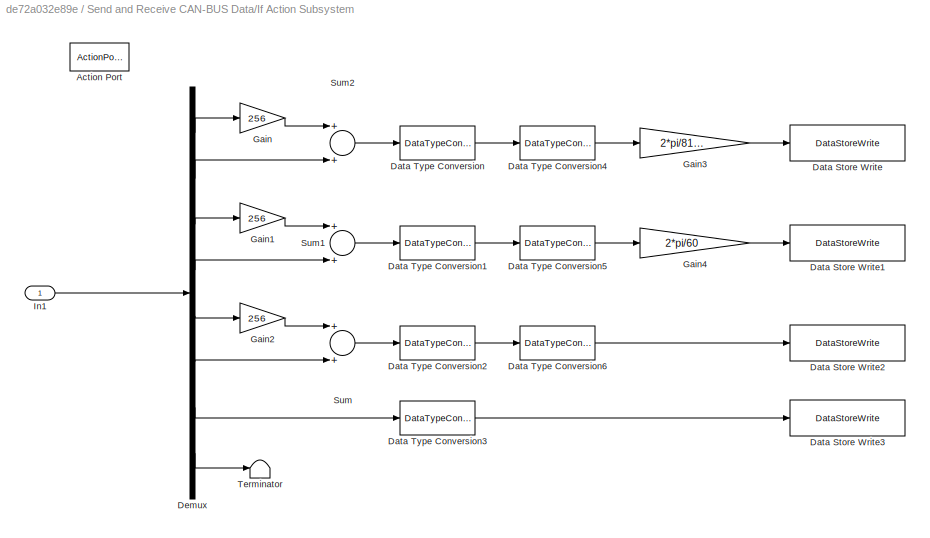
BLOCK [SubSystem] Send and Receive CAN-BUS Data/If Action Subsystem
  Ports = [1, 0, 0, 0, 0, 0, 0, 1]
  RequestExecContextInheritance = off
  TreatAsAtomicUnit = on
BLOCK [ActionPort] Send and Receive CAN-BUS Data/If Action Subsystem/Action Port
  ActionPortLabel = if(u2 == hex2dec('205') & u3 == 8 & u1 == 1)
BLOCK [DataStoreWrite] Send and Receive CAN-BUS Data/If Action Subsystem/Data Store Write
  DataStoreName = ROTOR_ANGLE
  Ports = [1]
BLOCK [DataStoreWrite] Send and Receive CAN-BUS Data/If Action Subsystem/Data Store Write1
  DataStoreName = ROTATE_SPEED
  Ports = [1]
BLOCK [DataStoreWrite] Send and Receive CAN-BUS Data/If Action Subsystem/Data Store Write2
  DataStoreName = ACTUAL_TORQUE
  Ports = [1]
BLOCK [DataStoreWrite] Send and Receive CAN-BUS Data/If Action Subsystem/Data Store Write3
  DataStoreName = TEMPERATURE
  Ports = [1]
BLOCK [DataTypeConversion] Send and Receive CAN-BUS Data/If Action Subsystem/Data Type Conversion
  OutDataTypeStr = int16
  RndMeth = Floor
  SaturateOnIntegerOverflow = off
BLOCK [DataTypeConversion] Send and Receive CAN-BUS Data/If Action Subsystem/Data Type Conversion1
  OutDataTypeStr = int16
  RndMeth = Floor
  SaturateOnIntegerOverflow = off
BLOCK [DataTypeConversion] Send and Receive CAN-BUS Data/If Action Subsystem/Data Type Conversion2
  OutDataTypeStr = int16
  RndMeth = Floor
  SaturateOnIntegerOverflow = off
BLOCK [DataTypeConversion] Send and Receive CAN-BUS Data/If Action Subsystem/Data Type Conversion3
  OutDataTypeStr = int8
  RndMeth = Floor
  SaturateOnIntegerOverflow = off
BLOCK [DataTypeConversion] Send and Receive CAN-BUS Data/If Action Subsystem/Data Type Conversion4
  OutDataTypeStr = double
  RndMeth = Floor
  SaturateOnIntegerOverflow = off
BLOCK [DataTypeConversion] Send and Receive CAN-BUS Data/If Action Subsystem/Data Type Conversion5
  OutDataTypeStr = double
  RndMeth = Floor
  SaturateOnIntegerOverflow = off
BLOCK [DataTypeConversion] Send and Receive CAN-BUS Data/If Action Subsystem/Data Type Conversion6
  OutDataTypeStr = double
  RndMeth = Floor
  SaturateOnIntegerOverflow = off
BLOCK [Demux] Send and Receive CAN-BUS Data/If Action Subsystem/Demux
  DisplayOption = bar
  Outputs = 8
  Ports = [1, 8]
BLOCK [Gain] Send and Receive CAN-BUS Data/If Action Subsystem/Gain
  Gain = 256
  OutDataTypeStr = Inherit: Inherit via internal rule
  ParamDataTypeStr = Inherit: Inherit via internal rule
  SaturateOnIntegerOverflow = off
BLOCK [Gain] Send and Receive CAN-BUS Data/If Action Subsystem/Gain1
  Gain = 256
  OutDataTypeStr = Inherit: Inherit via internal rule
  ParamDataTypeStr = Inherit: Inherit via internal rule
  SaturateOnIntegerOverflow = off
BLOCK [Gain] Send and Receive CAN-BUS Data/If Action Subsystem/Gain2
  Gain = 256
  OutDataTypeStr = Inherit: Inherit via internal rule
  ParamDataTypeStr = Inherit: Inherit via internal rule
  SaturateOnIntegerOverflow = off
BLOCK [Gain] Send and Receive CAN-BUS Data/If Action Subsystem/Gain3
  Gain = 2*pi/8192
  OutDataTypeStr = Inherit: Inherit via internal rule
  ParamDataTypeStr = Inherit: Inherit via internal rule
  SaturateOnIntegerOverflow = off
BLOCK [Gain] Send and Receive CAN-BUS Data/If Action Subsystem/Gain4
  Gain = 2*pi/60
  OutDataTypeStr = Inherit: Inherit via internal rule
  ParamDataTypeStr = Inherit: Inherit via internal rule
  SaturateOnIntegerOverflow = off
BLOCK [Inport] Send and Receive CAN-BUS Data/If Action Subsystem/In1
  IconDisplay = Port number
BLOCK [Sum] Send and Receive CAN-BUS Data/If Action Subsystem/Sum
  InputSameDT = off
  OutDataTypeStr = Inherit: Inherit via internal rule
  Ports = [2, 1]
  SaturateOnIntegerOverflow = off
BLOCK [Sum] Send and Receive CAN-BUS Data/If Action Subsystem/Sum1
  InputSameDT = off
  OutDataTypeStr = Inherit: Inherit via internal rule
  Ports = [2, 1]
  SaturateOnIntegerOverflow = off
BLOCK [Sum] Send and Receive CAN-BUS Data/If Action Subsystem/Sum2
  InputSameDT = off
  OutDataTypeStr = Inherit: Inherit via internal rule
  Ports = [2, 1]
  SaturateOnIntegerOverflow = off
BLOCK [Terminator] Send and Receive CAN-BUS Data/If Action Subsystem/Terminator
BLOCK [MultiPortSwitch] Send and Receive CAN-BUS Data/Index Vector
  DataPortOrder = Zero-based contiguous
  InputSameDT = off
  Inputs = 1
  Ports = [2, 1]
  SaturateOnIntegerOverflow = off
  zeroidx = on
BLOCK [MultiPortSwitch] Send and Receive CAN-BUS Data/Index Vector1
  DataPortOrder = Zero-based contiguous
  InputSameDT = off
  Inputs = 1
  Ports = [2, 1]
  SaturateOnIntegerOverflow = off
  zeroidx = on
BLOCK [Outport] Send and Receive CAN-BUS Data/ROTATE_SPEED
  IconDisplay = Port number
  Port = 2
BLOCK [Outport] Send and Receive CAN-BUS Data/ROTOR_ANGLE
  IconDisplay = Port number
BLOCK [Outport] Send and Receive CAN-BUS Data/TEMPERATURE
  IconDisplay = Port number
  Port = 4
BLOCK [Terminator] Send and Receive CAN-BUS Data/Terminator
BLOCK [Terminator] Send and Receive CAN-BUS Data/Terminator1
BLOCK [Terminator] Send and Receive CAN-BUS Data/Terminator2
BLOCK [Concatenate] Send and Receive CAN-BUS Data/Vector Concatenate
  NumInputs = 3
  Ports = [3, 1]
BLOCK [Constant] Send and Receive CAN-BUS Data/byte_0
  OutDataTypeStr = uint8
  Value = 0
BLOCK [Constant] Send and Receive CAN-BUS Data/byte_1
  OutDataTypeStr = uint8
BLOCK [Constant] Send and Receive CAN-BUS Data/ext
  OutDataTypeStr = uint8
  Value = 0
ANNOTATION Send and Receive CAN-BUS Data/CANbegin CE1/setup/setCANRxBuffer: RXB0
ANNOTATION Send and Receive CAN-BUS Data/CANbegin CE1/setup/setCANRxBuffer: RXB1
ANNOTATION Send and Receive CAN-BUS Data/CANbegin CE1/setup/setCANRxBuffer: no filter, no mask
LINE Data Store Read1:1 -> RT1:1
LINE RT1:1 -> Send and Receive CAN-BUS Data:1
LINE RT2:1 -> Send ROS Messages:1
LINE RT3:1 -> Send ROS Messages:2
LINE RT4:1 -> Send ROS Messages:3
LINE RT5:1 -> Send ROS Messages:4
LINE Receive ROS Messages/Constant10:1 -> Receive ROS Messages/Subsystem5:1
LINE Receive ROS Messages/If Action Subsystem1/Bus Selector:1 -> Receive ROS Messages/If Action Subsystem1/Data Store Write:1
LINE Receive ROS Messages/If Action Subsystem1/In1:1 -> Receive ROS Messages/If Action Subsystem1/Bus Selector:1
LINE Receive ROS Messages/If1:1 -> Receive ROS Messages/If Action Subsystem1:ifaction
NET Receive ROS Messages/Subscribe:1 -> Receive ROS Messages/If1:1, Receive ROS Messages/Subsystem5:2
LINE Receive ROS Messages/Subscribe:2 -> Receive ROS Messages/If Action Subsystem1:1
LINE Receive ROS Messages/Subsystem5/Constant:1 -> Receive ROS Messages/Subsystem5/Relational Operator1:2
NET Receive ROS Messages/Subsystem5/Current Time:1 -> Receive ROS Messages/Subsystem5/If Action Subsystem:1, Receive ROS Messages/Subsystem5/Sum1:1
LINE Receive ROS Messages/Subsystem5/Data Store Read:1 -> Receive ROS Messages/Subsystem5/Sum1:2
LINE Receive ROS Messages/Subsystem5/Data Type Conversion6:1 -> Receive ROS Messages/Subsystem5/Sum:1
LINE Receive ROS Messages/Subsystem5/Delay:1 -> Receive ROS Messages/Subsystem5/Sum:2
LINE Receive ROS Messages/Subsystem5/If Action Subsystem/In1:1 -> Receive ROS Messages/Subsystem5/If Action Subsystem/Data Store Write:1
LINE Receive ROS Messages/Subsystem5/If:1 -> Receive ROS Messages/Subsystem5/If Action Subsystem:ifaction
LINE Receive ROS Messages/Subsystem5/Logical Operator4:1 -> Receive ROS Messages/Subsystem5/ERROR_FLAG:1
NET Receive ROS Messages/Subsystem5/RECEIVED:1 -> Receive ROS Messages/Subsystem5/Data Type Conversion6:1, Receive ROS Messages/Subsystem5/If:1
LINE Receive ROS Messages/Subsystem5/Relational Operator1:1 -> Receive ROS Messages/Subsystem5/Logical Operator4:1
LINE Receive ROS Messages/Subsystem5/Relational Operator:1 -> Receive ROS Messages/Subsystem5/Logical Operator4:2
NET Receive ROS Messages/Subsystem5/Saturation:1 -> Receive ROS Messages/Subsystem5/Delay:1, Receive ROS Messages/Subsystem5/Relational Operator1:1
LINE Receive ROS Messages/Subsystem5/Sum1:1 -> Receive ROS Messages/Subsystem5/Relational Operator:1
LINE Receive ROS Messages/Subsystem5/Sum:1 -> Receive ROS Messages/Subsystem5/Saturation:1
LINE Receive ROS Messages/Subsystem5/TIMEOUT_LIMIT:1 -> Receive ROS Messages/Subsystem5/Relational Operator:2
LINE Send ROS Messages/ACTUAL_TORQUE:1 -> Send ROS Messages/Bus Assignment2:2
LINE Send ROS Messages/Blank Message1:1 -> Send ROS Messages/Bus Assignment1:1
LINE Send ROS Messages/Blank Message2:1 -> Send ROS Messages/Bus Assignment2:1
LINE Send ROS Messages/Blank Message3:1 -> Send ROS Messages/Bus Assignment3:1
LINE Send ROS Messages/Blank Message:1 -> Send ROS Messages/Bus Assignment:1
LINE Send ROS Messages/Bus Assignment1:1 -> Send ROS Messages/Publish1:1
LINE Send ROS Messages/Bus Assignment2:1 -> Send ROS Messages/Publish2:1
LINE Send ROS Messages/Bus Assignment3:1 -> Send ROS Messages/Publish3:1
LINE Send ROS Messages/Bus Assignment:1 -> Send ROS Messages/Publish:1
LINE Send ROS Messages/ROTATE_SPEED:1 -> Send ROS Messages/Bus Assignment1:2
LINE Send ROS Messages/ROTOR_ANGLE:1 -> Send ROS Messages/Bus Assignment:2
LINE Send ROS Messages/TEMPERATURE:1 -> Send ROS Messages/Bus Assignment3:2
NET Send and Receive CAN-BUS Data/Byte Pack:1 -> Send and Receive CAN-BUS Data/Index Vector1:2, Send and Receive CAN-BUS Data/Index Vector:2
LINE Send and Receive CAN-BUS Data/CANreceive CE1/CAN_NOMSG:1 -> Send and Receive CAN-BUS Data/CANreceive CE1/Relational Operator:2
LINE Send and Receive CAN-BUS Data/CANreceive CE1/In:1 -> Send and Receive CAN-BUS Data/CANreceive CE1/mcp2515_read_RX_STATUS:1
LINE Send and Receive CAN-BUS Data/CANreceive CE1/Relational Operator:1 -> Send and Receive CAN-BUS Data/CANreceive CE1/readRxBuffer:enable
LINE Send and Receive CAN-BUS Data/CANreceive CE1/checkRxMsgStatus/Bitmask_RxBn:1 -> Send and Receive CAN-BUS Data/CANreceive CE1/checkRxMsgStatus/Switch:2
LINE Send and Receive CAN-BUS Data/CANreceive CE1/checkRxMsgStatus/CAN_NOMSG:1 -> Send and Receive CAN-BUS Data/CANreceive CE1/checkRxMsgStatus/Switch:3
LINE Send and Receive CAN-BUS Data/CANreceive CE1/checkRxMsgStatus/CAN_OK:1 -> Send and Receive CAN-BUS Data/CANreceive CE1/checkRxMsgStatus/Switch:1
LINE Send and Receive CAN-BUS Data/CANreceive CE1/checkRxMsgStatus/RX_STATUS:1 -> Send and Receive CAN-BUS Data/CANreceive CE1/checkRxMsgStatus/Bitmask_RxBn:1
LINE Send and Receive CAN-BUS Data/CANreceive CE1/checkRxMsgStatus/Switch:1 -> Send and Receive CAN-BUS Data/CANreceive CE1/checkRxMsgStatus/CANRx_Received:1
NET Send and Receive CAN-BUS Data/CANreceive CE1/checkRxMsgStatus:1 -> Send and Receive CAN-BUS Data/CANreceive CE1/CAN_Received:1, Send and Receive CAN-BUS Data/CANreceive CE1/Relational Operator:1
LINE Send and Receive CAN-BUS Data/CANreceive CE1/mcp2515_read_RX_STATUS:1 -> Send and Receive CAN-BUS Data/CANreceive CE1/Out:1
NET Send and Receive CAN-BUS Data/CANreceive CE1/mcp2515_read_RX_STATUS:2 -> Send and Receive CAN-BUS Data/CANreceive CE1/checkRxMsgStatus:1, Send and Receive CAN-BUS Data/CANreceive CE1/readRxBuffer:1
LINE Send and Receive CAN-BUS Data/CANreceive CE1/readRxBuffer/Ground:1 -> Send and Receive CAN-BUS Data/CANreceive CE1/readRxBuffer/mcp2515_readRxBuffer:1
LINE Send and Receive CAN-BUS Data/CANreceive CE1/readRxBuffer/RX_STATUS:1 -> Send and Receive CAN-BUS Data/CANreceive CE1/readRxBuffer/checkRx1Buffer:1
LINE Send and Receive CAN-BUS Data/CANreceive CE1/readRxBuffer/checkRx1Buffer/Bitmask_RxB1_Status:1 -> Send and Receive CAN-BUS Data/CANreceive CE1/readRxBuffer/checkRx1Buffer/Switch:2
LINE Send and Receive CAN-BUS Data/CANreceive CE1/readRxBuffer/checkRx1Buffer/MCP_READ_RxB0:1 -> Send and Receive CAN-BUS Data/CANreceive CE1/readRxBuffer/checkRx1Buffer/Switch:3
LINE Send and Receive CAN-BUS Data/CANreceive CE1/readRxBuffer/checkRx1Buffer/MCP_READ_RxB1:1 -> Send and Receive CAN-BUS Data/CANreceive CE1/readRxBuffer/checkRx1Buffer/Switch:1
LINE Send and Receive CAN-BUS Data/CANreceive CE1/readRxBuffer/checkRx1Buffer/RX_STATUS:1 -> Send and Receive CAN-BUS Data/CANreceive CE1/readRxBuffer/checkRx1Buffer/Bitmask_RxB1_Status:1
LINE Send and Receive CAN-BUS Data/CANreceive CE1/readRxBuffer/checkRx1Buffer/Switch:1 -> Send and Receive CAN-BUS Data/CANreceive CE1/readRxBuffer/checkRx1Buffer/cmd_read_rx_buff:1
LINE Send and Receive CAN-BUS Data/CANreceive CE1/readRxBuffer/checkRx1Buffer:1 -> Send and Receive CAN-BUS Data/CANreceive CE1/readRxBuffer/mcp2515_readRxBuffer:2
LINE Send and Receive CAN-BUS Data/CANreceive CE1/readRxBuffer/getDLC/Bitwise Operator:1 -> Send and Receive CAN-BUS Data/CANreceive CE1/readRxBuffer/getDLC/CAN_dlc:1
LINE Send and Receive CAN-BUS Data/CANreceive CE1/readRxBuffer/getDLC/MCP_DLC_MASK:1 -> Send and Receive CAN-BUS Data/CANreceive CE1/readRxBuffer/getDLC/Bitwise Operator:2
LINE Send and Receive CAN-BUS Data/CANreceive CE1/readRxBuffer/getDLC/RxBx:1 -> Send and Receive CAN-BUS Data/CANreceive CE1/readRxBuffer/getDLC/RxDLC:1
LINE Send and Receive CAN-BUS Data/CANreceive CE1/readRxBuffer/getDLC/RxDLC:1 -> Send and Receive CAN-BUS Data/CANreceive CE1/readRxBuffer/getDLC/Bitwise Operator:1
LINE Send and Receive CAN-BUS Data/CANreceive CE1/readRxBuffer/getDLC:1 -> Send and Receive CAN-BUS Data/CANreceive CE1/readRxBuffer/CAN_dlc:1
LINE Send and Receive CAN-BUS Data/CANreceive CE1/readRxBuffer/getData/RxBx:1 -> Send and Receive CAN-BUS Data/CANreceive CE1/readRxBuffer/getData/RxData:1
LINE Send and Receive CAN-BUS Data/CANreceive CE1/readRxBuffer/getData/RxData:1 -> Send and Receive CAN-BUS Data/CANreceive CE1/readRxBuffer/getData/CAN_data:1
LINE Send and Receive CAN-BUS Data/CANreceive CE1/readRxBuffer/getData:1 -> Send and Receive CAN-BUS Data/CANreceive CE1/readRxBuffer/CAN_data:1
LINE Send and Receive CAN-BUS Data/CANreceive CE1/readRxBuffer/getID/Data Type Conversion:1 -> Send and Receive CAN-BUS Data/CANreceive CE1/readRxBuffer/getID/CAN_ext:1
LINE Send and Receive CAN-BUS Data/CANreceive CE1/readRxBuffer/getID/If1:1 -> Send and Receive CAN-BUS Data/CANreceive CE1/readRxBuffer/getID/extended id:ifaction
LINE Send and Receive CAN-BUS Data/CANreceive CE1/readRxBuffer/getID/If1:2 -> Send and Receive CAN-BUS Data/CANreceive CE1/readRxBuffer/getID/standard id:ifaction
LINE Send and Receive CAN-BUS Data/CANreceive CE1/readRxBuffer/getID/Merge:1 -> Send and Receive CAN-BUS Data/CANreceive CE1/readRxBuffer/getID/CAN_id:1
NET Send and Receive CAN-BUS Data/CANreceive CE1/readRxBuffer/getID/RxBn:1 -> Send and Receive CAN-BUS Data/CANreceive CE1/readRxBuffer/getID/SIDH:1, Send and Receive CAN-BUS Data/CANreceive CE1/readRxBuffer/getID/SIDL:1, Send and Receive CAN-BUS Data/CANreceive CE1/readRxBuffer/getID/extended id:2
LINE Send and Receive CAN-BUS Data/CANreceive CE1/readRxBuffer/getID/SIDH:1 -> Send and Receive CAN-BUS Data/CANreceive CE1/readRxBuffer/getID/getStandardID:2
NET Send and Receive CAN-BUS Data/CANreceive CE1/readRxBuffer/getID/SIDL:1 -> Send and Receive CAN-BUS Data/CANreceive CE1/readRxBuffer/getID/checkExtendedId:1, Send and Receive CAN-BUS Data/CANreceive CE1/readRxBuffer/getID/getStandardID:1
LINE Send and Receive CAN-BUS Data/CANreceive CE1/readRxBuffer/getID/checkExtendedId/Bitmask_EXIDE:1 -> Send and Receive CAN-BUS Data/CANreceive CE1/readRxBuffer/getID/checkExtendedId/Relational Operator:2
LINE Send and Receive CAN-BUS Data/CANreceive CE1/readRxBuffer/getID/checkExtendedId/MCP_TXB_EXIDE_M:1 -> Send and Receive CAN-BUS Data/CANreceive CE1/readRxBuffer/getID/checkExtendedId/Relational Operator:1
LINE Send and Receive CAN-BUS Data/CANreceive CE1/readRxBuffer/getID/checkExtendedId/Relational Operator:1 -> Send and Receive CAN-BUS Data/CANreceive CE1/readRxBuffer/getID/checkExtendedId/ext:1
LINE Send and Receive CAN-BUS Data/CANreceive CE1/readRxBuffer/getID/checkExtendedId/SIDL:1 -> Send and Receive CAN-BUS Data/CANreceive CE1/readRxBuffer/getID/checkExtendedId/Bitmask_EXIDE:1
NET Send and Receive CAN-BUS Data/CANreceive CE1/readRxBuffer/getID/checkExtendedId:1 -> Send and Receive CAN-BUS Data/CANreceive CE1/readRxBuffer/getID/Data Type Conversion:1, Send and Receive CAN-BUS Data/CANreceive CE1/readRxBuffer/getID/If1:1
LINE Send and Receive CAN-BUS Data/CANreceive CE1/readRxBuffer/getID/extended id/EID15-8:1 -> Send and Receive CAN-BUS Data/CANreceive CE1/readRxBuffer/getID/extended id/Shift Arithmetic_EID15-8:1
LINE Send and Receive CAN-BUS Data/CANreceive CE1/readRxBuffer/getID/extended id/EID17-16:1 -> Send and Receive CAN-BUS Data/CANreceive CE1/readRxBuffer/getID/extended id/Shift Arithmetic_EID17-16:1
LINE Send and Receive CAN-BUS Data/CANreceive CE1/readRxBuffer/getID/extended id/EID7-0:1 -> Send and Receive CAN-BUS Data/CANreceive CE1/readRxBuffer/getID/extended id/Sum2:2
NET Send and Receive CAN-BUS Data/CANreceive CE1/readRxBuffer/getID/extended id/RxBn:1 -> Send and Receive CAN-BUS Data/CANreceive CE1/readRxBuffer/getID/extended id/EID15-8:1, Send and Receive CAN-BUS Data/CANreceive CE1/readRxBuffer/getID/extended id/EID17-16:1, Send and Receive CAN-BUS Data/CANreceive CE1/readRxBuffer/getID/extended id/EID7-0:1
LINE Send and Receive CAN-BUS Data/CANreceive CE1/readRxBuffer/getID/extended id/Shift Arithmetic_EID15-8:1 -> Send and Receive CAN-BUS Data/CANreceive CE1/readRxBuffer/getID/extended id/Sum1:2
LINE Send and Receive CAN-BUS Data/CANreceive CE1/readRxBuffer/getID/extended id/Shift Arithmetic_EID17-16:1 -> Send and Receive CAN-BUS Data/CANreceive CE1/readRxBuffer/getID/extended id/Sum:2
LINE Send and Receive CAN-BUS Data/CANreceive CE1/readRxBuffer/getID/extended id/Shift Arithmetic_standardID:1 -> Send and Receive CAN-BUS Data/CANreceive CE1/readRxBuffer/getID/extended id/Sum:1
LINE Send and Receive CAN-BUS Data/CANreceive CE1/readRxBuffer/getID/extended id/Sum1:1 -> Send and Receive CAN-BUS Data/CANreceive CE1/readRxBuffer/getID/extended id/Sum2:1
LINE Send and Receive CAN-BUS Data/CANreceive CE1/readRxBuffer/getID/extended id/Sum2:1 -> Send and Receive CAN-BUS Data/CANreceive CE1/readRxBuffer/getID/extended id/id:1
LINE Send and Receive CAN-BUS Data/CANreceive CE1/readRxBuffer/getID/extended id/Sum:1 -> Send and Receive CAN-BUS Data/CANreceive CE1/readRxBuffer/getID/extended id/Sum1:1
LINE Send and Receive CAN-BUS Data/CANreceive CE1/readRxBuffer/getID/extended id/standardID:1 -> Send and Receive CAN-BUS Data/CANreceive CE1/readRxBuffer/getID/extended id/Shift Arithmetic_standardID:1
LINE Send and Receive CAN-BUS Data/CANreceive CE1/readRxBuffer/getID/extended id:1 -> Send and Receive CAN-BUS Data/CANreceive CE1/readRxBuffer/getID/Merge:2
LINE Send and Receive CAN-BUS Data/CANreceive CE1/readRxBuffer/getID/getStandardID/Bitmask_SID2-0:1 -> Send and Receive CAN-BUS Data/CANreceive CE1/readRxBuffer/getID/getStandardID/Shift Arithmetic_SID2-0:1
LINE Send and Receive CAN-BUS Data/CANreceive CE1/readRxBuffer/getID/getStandardID/Data Type Conversion:1 -> Send and Receive CAN-BUS Data/CANreceive CE1/readRxBuffer/getID/getStandardID/Shift Arithmetic_SID10-3:1
LINE Send and Receive CAN-BUS Data/CANreceive CE1/readRxBuffer/getID/getStandardID/SIDH:1 -> Send and Receive CAN-BUS Data/CANreceive CE1/readRxBuffer/getID/getStandardID/Data Type Conversion:1
LINE Send and Receive CAN-BUS Data/CANreceive CE1/readRxBuffer/getID/getStandardID/SIDL:1 -> Send and Receive CAN-BUS Data/CANreceive CE1/readRxBuffer/getID/getStandardID/Bitmask_SID2-0:1
LINE Send and Receive CAN-BUS Data/CANreceive CE1/readRxBuffer/getID/getStandardID/Shift Arithmetic_SID10-3:1 -> Send and Receive CAN-BUS Data/CANreceive CE1/readRxBuffer/getID/getStandardID/Sum1:2
LINE Send and Receive CAN-BUS Data/CANreceive CE1/readRxBuffer/getID/getStandardID/Shift Arithmetic_SID2-0:1 -> Send and Receive CAN-BUS Data/CANreceive CE1/readRxBuffer/getID/getStandardID/Sum1:1
LINE Send and Receive CAN-BUS Data/CANreceive CE1/readRxBuffer/getID/getStandardID/Sum1:1 -> Send and Receive CAN-BUS Data/CANreceive CE1/readRxBuffer/getID/getStandardID/stadardID:1
NET Send and Receive CAN-BUS Data/CANreceive CE1/readRxBuffer/getID/getStandardID:1 -> Send and Receive CAN-BUS Data/CANreceive CE1/readRxBuffer/getID/extended id:1, Send and Receive CAN-BUS Data/CANreceive CE1/readRxBuffer/getID/standard id:1
LINE Send and Receive CAN-BUS Data/CANreceive CE1/readRxBuffer/getID/standard id/stadardID:1 -> Send and Receive CAN-BUS Data/CANreceive CE1/readRxBuffer/getID/standard id/id:1
LINE Send and Receive CAN-BUS Data/CANreceive CE1/readRxBuffer/getID/standard id:1 -> Send and Receive CAN-BUS Data/CANreceive CE1/readRxBuffer/getID/Merge:1
LINE Send and Receive CAN-BUS Data/CANreceive CE1/readRxBuffer/getID:1 -> Send and Receive CAN-BUS Data/CANreceive CE1/readRxBuffer/CAN_ext:1
LINE Send and Receive CAN-BUS Data/CANreceive CE1/readRxBuffer/getID:2 -> Send and Receive CAN-BUS Data/CANreceive CE1/readRxBuffer/CAN_id:1
LINE Send and Receive CAN-BUS Data/CANreceive CE1/readRxBuffer/mcp2515_readRxBuffer:1 -> Send and Receive CAN-BUS Data/CANreceive CE1/readRxBuffer/Terminator:1
NET Send and Receive CAN-BUS Data/CANreceive CE1/readRxBuffer/mcp2515_readRxBuffer:2 -> Send and Receive CAN-BUS Data/CANreceive CE1/readRxBuffer/getDLC:1, Send and Receive CAN-BUS Data/CANreceive CE1/readRxBuffer/getData:1, Send and Receive CAN-BUS Data/CANreceive CE1/readRxBuffer/getID:1
LINE Send and Receive CAN-BUS Data/CANreceive CE1/readRxBuffer:1 -> Send and Receive CAN-BUS Data/CANreceive CE1/CAN_ext:1
LINE Send and Receive CAN-BUS Data/CANreceive CE1/readRxBuffer:2 -> Send and Receive CAN-BUS Data/CANreceive CE1/CAN_id:1
LINE Send and Receive CAN-BUS Data/CANreceive CE1/readRxBuffer:3 -> Send and Receive CAN-BUS Data/CANreceive CE1/CAN_dlc:1
LINE Send and Receive CAN-BUS Data/CANreceive CE1/readRxBuffer:4 -> Send and Receive CAN-BUS Data/CANreceive CE1/CAN_data:1
LINE Send and Receive CAN-BUS Data/CANreceive CE1:1 -> Send and Receive CAN-BUS Data/Terminator:1
LINE Send and Receive CAN-BUS Data/CANreceive CE1:2 -> Send and Receive CAN-BUS Data/Data Type Conversion4:1
LINE Send and Receive CAN-BUS Data/CANreceive CE1:3 -> Send and Receive CAN-BUS Data/Terminator2:1
LINE Send and Receive CAN-BUS Data/CANreceive CE1:4 -> Send and Receive CAN-BUS Data/Data Type Conversion3:1
LINE Send and Receive CAN-BUS Data/CANreceive CE1:5 -> Send and Receive CAN-BUS Data/Data Type Conversion2:1
LINE Send and Receive CAN-BUS Data/CANreceive CE1:6 -> Send and Receive CAN-BUS Data/If Action Subsystem:1
LINE Send and Receive CAN-BUS Data/CANtransmit CE1/CAN_data:1 -> Send and Receive CAN-BUS Data/CANtransmit CE1/load Tx data:5
LINE Send and Receive CAN-BUS Data/CANtransmit CE1/CAN_dlc:1 -> Send and Receive CAN-BUS Data/CANtransmit CE1/load Tx data:4
LINE Send and Receive CAN-BUS Data/CANtransmit CE1/CAN_ext:1 -> Send and Receive CAN-BUS Data/CANtransmit CE1/load Tx data:2
LINE Send and Receive CAN-BUS Data/CANtransmit CE1/CAN_id:1 -> Send and Receive CAN-BUS Data/CANtransmit CE1/load Tx data:3
LINE Send and Receive CAN-BUS Data/CANtransmit CE1/In:1 -> Send and Receive CAN-BUS Data/CANtransmit CE1/load Tx data:1
LINE Send and Receive CAN-BUS Data/CANtransmit CE1/check TxB0/Bitmask_TxReq:1 -> Send and Receive CAN-BUS Data/CANtransmit CE1/check TxB0/Switch:2
LINE Send and Receive CAN-BUS Data/CANtransmit CE1/check TxB0/CAN_FAIL:1 -> Send and Receive CAN-BUS Data/CANtransmit CE1/check TxB0/Switch:3
LINE Send and Receive CAN-BUS Data/CANtransmit CE1/check TxB0/CAN_OK:1 -> Send and Receive CAN-BUS Data/CANtransmit CE1/check TxB0/Switch:1
LINE Send and Receive CAN-BUS Data/CANtransmit CE1/check TxB0/In1:1 -> Send and Receive CAN-BUS Data/CANtransmit CE1/check TxB0/mcp2515_readRegister:1
LINE Send and Receive CAN-BUS Data/CANtransmit CE1/check TxB0/MCP_TxB0CTRL1:1 -> Send and Receive CAN-BUS Data/CANtransmit CE1/check TxB0/mcp2515_readRegister:2
LINE Send and Receive CAN-BUS Data/CANtransmit CE1/check TxB0/Switch:1 -> Send and Receive CAN-BUS Data/CANtransmit CE1/check TxB0/CANTx_Transmit:1
LINE Send and Receive CAN-BUS Data/CANtransmit CE1/check TxB0/mcp2515_readRegister:1 -> Send and Receive CAN-BUS Data/CANtransmit CE1/check TxB0/Out1:1
LINE Send and Receive CAN-BUS Data/CANtransmit CE1/check TxB0/mcp2515_readRegister:2 -> Send and Receive CAN-BUS Data/CANtransmit CE1/check TxB0/Bitmask_TxReq:1
LINE Send and Receive CAN-BUS Data/CANtransmit CE1/check TxB0:1 -> Send and Receive CAN-BUS Data/CANtransmit CE1/Out:1
LINE Send and Receive CAN-BUS Data/CANtransmit CE1/check TxB0:2 -> Send and Receive CAN-BUS Data/CANtransmit CE1/CAN_Transmitted:1
LINE Send and Receive CAN-BUS Data/CANtransmit CE1/load Tx data/CAN_data:1 -> Send and Receive CAN-BUS Data/CANtransmit CE1/load Tx data/Vector Concatenate:3
LINE Send and Receive CAN-BUS Data/CANtransmit CE1/load Tx data/CAN_dlc:1 -> Send and Receive CAN-BUS Data/CANtransmit CE1/load Tx data/Vector Concatenate:2
LINE Send and Receive CAN-BUS Data/CANtransmit CE1/load Tx data/CAN_ext:1 -> Send and Receive CAN-BUS Data/CANtransmit CE1/load Tx data/setID:1
LINE Send and Receive CAN-BUS Data/CANtransmit CE1/load Tx data/CAN_id:1 -> Send and Receive CAN-BUS Data/CANtransmit CE1/load Tx data/setID:2
LINE Send and Receive CAN-BUS Data/CANtransmit CE1/load Tx data/In1:1 -> Send and Receive CAN-BUS Data/CANtransmit CE1/load Tx data/mcp2515_writeTxBuffer:1
LINE Send and Receive CAN-BUS Data/CANtransmit CE1/load Tx data/MCP_load_TxB0:1 -> Send and Receive CAN-BUS Data/CANtransmit CE1/load Tx data/mcp2515_writeTxBuffer:2
LINE Send and Receive CAN-BUS Data/CANtransmit CE1/load Tx data/Vector Concatenate:1 -> Send and Receive CAN-BUS Data/CANtransmit CE1/load Tx data/mcp2515_writeTxBuffer:3
LINE Send and Receive CAN-BUS Data/CANtransmit CE1/load Tx data/mcp2515_writeTxBuffer:1 -> Send and Receive CAN-BUS Data/CANtransmit CE1/load Tx data/Out1:1
LINE Send and Receive CAN-BUS Data/CANtransmit CE1/load Tx data/setID/Extended ID/Bit Set EXIDE:1 -> Send and Receive CAN-BUS Data/CANtransmit CE1/load Tx data/setID/Extended ID/Vector Concatenate:2
LINE Send and Receive CAN-BUS Data/CANtransmit CE1/load Tx data/setID/Extended ID/Bitmask_EID0-7:1 -> Send and Receive CAN-BUS Data/CANtransmit CE1/load Tx data/setID/Extended ID/Data Type Conversion1:1
LINE Send and Receive CAN-BUS Data/CANtransmit CE1/load Tx data/setID/Extended ID/Bitmask_EID16-17:1 -> Send and Receive CAN-BUS Data/CANtransmit CE1/load Tx data/setID/Extended ID/Sum3:1
LINE Send and Receive CAN-BUS Data/CANtransmit CE1/load Tx data/setID/Extended ID/Bitmask_EID8-15:1 -> Send and Receive CAN-BUS Data/CANtransmit CE1/load Tx data/setID/Extended ID/Data Type Conversion3:1
LINE Send and Receive CAN-BUS Data/CANtransmit CE1/load Tx data/setID/Extended ID/Bitmask_SID0-2:1 -> Send and Receive CAN-BUS Data/CANtransmit CE1/load Tx data/setID/Extended ID/Shift Arithmetic_SID0-2:1
LINE Send and Receive CAN-BUS Data/CANtransmit CE1/load Tx data/setID/Extended ID/Data Type Conversion1:1 -> Send and Receive CAN-BUS Data/CANtransmit CE1/load Tx data/setID/Extended ID/Vector Concatenate:4
LINE Send and Receive CAN-BUS Data/CANtransmit CE1/load Tx data/setID/Extended ID/Data Type Conversion2:1 -> Send and Receive CAN-BUS Data/CANtransmit CE1/load Tx data/setID/Extended ID/Vector Concatenate:1
LINE Send and Receive CAN-BUS Data/CANtransmit CE1/load Tx data/setID/Extended ID/Data Type Conversion3:1 -> Send and Receive CAN-BUS Data/CANtransmit CE1/load Tx data/setID/Extended ID/Vector Concatenate:3
NET Send and Receive CAN-BUS Data/CANtransmit CE1/load Tx data/setID/Extended ID/Shift Arithmetic1:1 -> Send and Receive CAN-BUS Data/CANtransmit CE1/load Tx data/setID/Extended ID/Bitmask_EID16-17:1, Send and Receive CAN-BUS Data/CANtransmit CE1/load Tx data/setID/Extended ID/Bitmask_SID0-2:1, Send and Receive CAN-BUS Data/CANtransmit CE1/load Tx data/setID/Extended ID/Shift Arithmetic_SID3-10:1
NET Send and Receive CAN-BUS Data/CANtransmit CE1/load Tx data/setID/Extended ID/Shift Arithmetic:1 -> Send and Receive CAN-BUS Data/CANtransmit CE1/load Tx data/setID/Extended ID/Bitmask_EID8-15:1, Send and Receive CAN-BUS Data/CANtransmit CE1/load Tx data/setID/Extended ID/Shift Arithmetic1:1
LINE Send and Receive CAN-BUS Data/CANtransmit CE1/load Tx data/setID/Extended ID/Shift Arithmetic_SID0-2:1 -> Send and Receive CAN-BUS Data/CANtransmit CE1/load Tx data/setID/Extended ID/Sum3:2
LINE Send and Receive CAN-BUS Data/CANtransmit CE1/load Tx data/setID/Extended ID/Shift Arithmetic_SID3-10:1 -> Send and Receive CAN-BUS Data/CANtransmit CE1/load Tx data/setID/Extended ID/Data Type Conversion2:1
LINE Send and Receive CAN-BUS Data/CANtransmit CE1/load Tx data/setID/Extended ID/Sum3:1 -> Send and Receive CAN-BUS Data/CANtransmit CE1/load Tx data/setID/Extended ID/Bit Set EXIDE:1
LINE Send and Receive CAN-BUS Data/CANtransmit CE1/load Tx data/setID/Extended ID/Vector Concatenate:1 -> Send and Receive CAN-BUS Data/CANtransmit CE1/load Tx data/setID/Extended ID/TxBn_ID:1
NET Send and Receive CAN-BUS Data/CANtransmit CE1/load Tx data/setID/Extended ID/id:1 -> Send and Receive CAN-BUS Data/CANtransmit CE1/load Tx data/setID/Extended ID/Bitmask_EID0-7:1, Send and Receive CAN-BUS Data/CANtransmit CE1/load Tx data/setID/Extended ID/Shift Arithmetic:1
LINE Send and Receive CAN-BUS Data/CANtransmit CE1/load Tx data/setID/Extended ID:1 -> Send and Receive CAN-BUS Data/CANtransmit CE1/load Tx data/setID/Merge:2
LINE Send and Receive CAN-BUS Data/CANtransmit CE1/load Tx data/setID/If:1 -> Send and Receive CAN-BUS Data/CANtransmit CE1/load Tx data/setID/Extended ID:ifaction
LINE Send and Receive CAN-BUS Data/CANtransmit CE1/load Tx data/setID/If:2 -> Send and Receive CAN-BUS Data/CANtransmit CE1/load Tx data/setID/Standard ID:ifaction
LINE Send and Receive CAN-BUS Data/CANtransmit CE1/load Tx data/setID/Merge:1 -> Send and Receive CAN-BUS Data/CANtransmit CE1/load Tx data/setID/TxBn_ID:1
LINE Send and Receive CAN-BUS Data/CANtransmit CE1/load Tx data/setID/Standard ID/Vector Concatenate:1 -> Send and Receive CAN-BUS Data/CANtransmit CE1/load Tx data/setID/Standard ID/TxBn_ID:1
NET Send and Receive CAN-BUS Data/CANtransmit CE1/load Tx data/setID/Standard ID/convert_ID/Bitmask_SID0-10:1 -> Send and Receive CAN-BUS Data/CANtransmit CE1/load Tx data/setID/Standard ID/convert_ID/Shift Arithmetic1:1, Send and Receive CAN-BUS Data/CANtransmit CE1/load Tx data/setID/Standard ID/convert_ID/Shift Arithmetic2:1
LINE Send and Receive CAN-BUS Data/CANtransmit CE1/load Tx data/setID/Standard ID/convert_ID/Bitmask_SID0-2:1 -> Send and Receive CAN-BUS Data/CANtransmit CE1/load Tx data/setID/Standard ID/convert_ID/Data Type Conversion2:1
LINE Send and Receive CAN-BUS Data/CANtransmit CE1/load Tx data/setID/Standard ID/convert_ID/Data Type Conversion1:1 -> Send and Receive CAN-BUS Data/CANtransmit CE1/load Tx data/setID/Standard ID/convert_ID/SIDH:1
LINE Send and Receive CAN-BUS Data/CANtransmit CE1/load Tx data/setID/Standard ID/convert_ID/Data Type Conversion2:1 -> Send and Receive CAN-BUS Data/CANtransmit CE1/load Tx data/setID/Standard ID/convert_ID/SIDL:1
LINE Send and Receive CAN-BUS Data/CANtransmit CE1/load Tx data/setID/Standard ID/convert_ID/Shift Arithmetic1:1 -> Send and Receive CAN-BUS Data/CANtransmit CE1/load Tx data/setID/Standard ID/convert_ID/Data Type Conversion1:1
LINE Send and Receive CAN-BUS Data/CANtransmit CE1/load Tx data/setID/Standard ID/convert_ID/Shift Arithmetic2:1 -> Send and Receive CAN-BUS Data/CANtransmit CE1/load Tx data/setID/Standard ID/convert_ID/Bitmask_SID0-2:1
LINE Send and Receive CAN-BUS Data/CANtransmit CE1/load Tx data/setID/Standard ID/convert_ID/id:1 -> Send and Receive CAN-BUS Data/CANtransmit CE1/load Tx data/setID/Standard ID/convert_ID/Bitmask_SID0-10:1
LINE Send and Receive CAN-BUS Data/CANtransmit CE1/load Tx data/setID/Standard ID/convert_ID:1 -> Send and Receive CAN-BUS Data/CANtransmit CE1/load Tx data/setID/Standard ID/Vector Concatenate:1
LINE Send and Receive CAN-BUS Data/CANtransmit CE1/load Tx data/setID/Standard ID/convert_ID:2 -> Send and Receive CAN-BUS Data/CANtransmit CE1/load Tx data/setID/Standard ID/Vector Concatenate:2
LINE Send and Receive CAN-BUS Data/CANtransmit CE1/load Tx data/setID/Standard ID/id:1 -> Send and Receive CAN-BUS Data/CANtransmit CE1/load Tx data/setID/Standard ID/convert_ID:1
NET Send and Receive CAN-BUS Data/CANtransmit CE1/load Tx data/setID/Standard ID/no data:1 -> Send and Receive CAN-BUS Data/CANtransmit CE1/load Tx data/setID/Standard ID/Vector Concatenate:3, Send and Receive CAN-BUS Data/CANtransmit CE1/load Tx data/setID/Standard ID/Vector Concatenate:4
LINE Send and Receive CAN-BUS Data/CANtransmit CE1/load Tx data/setID/Standard ID:1 -> Send and Receive CAN-BUS Data/CANtransmit CE1/load Tx data/setID/Merge:1
LINE Send and Receive CAN-BUS Data/CANtransmit CE1/load Tx data/setID/ext:1 -> Send and Receive CAN-BUS Data/CANtransmit CE1/load Tx data/setID/If:1
NET Send and Receive CAN-BUS Data/CANtransmit CE1/load Tx data/setID/id:1 -> Send and Receive CAN-BUS Data/CANtransmit CE1/load Tx data/setID/Extended ID:1, Send and Receive CAN-BUS Data/CANtransmit CE1/load Tx data/setID/Standard ID:1
LINE Send and Receive CAN-BUS Data/CANtransmit CE1/load Tx data/setID:1 -> Send and Receive CAN-BUS Data/CANtransmit CE1/load Tx data/Vector Concatenate:1
LINE Send and Receive CAN-BUS Data/CANtransmit CE1/load Tx data:1 -> Send and Receive CAN-BUS Data/CANtransmit CE1/send TxB0:1
LINE Send and Receive CAN-BUS Data/CANtransmit CE1/send TxB0/In1:1 -> Send and Receive CAN-BUS Data/CANtransmit CE1/send TxB0/mcp2515_writeRegister1:1
LINE Send and Receive CAN-BUS Data/CANtransmit CE1/send TxB0/MCP_TxB0CTRL:1 -> Send and Receive CAN-BUS Data/CANtransmit CE1/send TxB0/mcp2515_writeRegister1:2
LINE Send and Receive CAN-BUS Data/CANtransmit CE1/send TxB0/TxREQ:1 -> Send and Receive CAN-BUS Data/CANtransmit CE1/send TxB0/mcp2515_writeRegister1:3
LINE Send and Receive CAN-BUS Data/CANtransmit CE1/send TxB0/mcp2515_writeRegister1:1 -> Send and Receive CAN-BUS Data/CANtransmit CE1/send TxB0/Out1:1
LINE Send and Receive CAN-BUS Data/CANtransmit CE1/send TxB0:1 -> Send and Receive CAN-BUS Data/CANtransmit CE1/check TxB0:1
LINE Send and Receive CAN-BUS Data/CANtransmit CE1:1 -> Send and Receive CAN-BUS Data/CANreceive CE1:1
LINE Send and Receive CAN-BUS Data/CANtransmit CE1:2 -> Send and Receive CAN-BUS Data/Terminator1:1
LINE Send and Receive CAN-BUS Data/CMD_VOLTAGE:1 -> Send and Receive CAN-BUS Data/Data Type Conversion7:1
LINE Send and Receive CAN-BUS Data/Constant1:1 -> Send and Receive CAN-BUS Data/Vector Concatenate:3
LINE Send and Receive CAN-BUS Data/DLC:1 -> Send and Receive CAN-BUS Data/CANtransmit CE1:4
LINE Send and Receive CAN-BUS Data/Data Store Read2:1 -> Send and Receive CAN-BUS Data/ROTATE_SPEED:1
LINE Send and Receive CAN-BUS Data/Data Store Read3:1 -> Send and Receive CAN-BUS Data/ACTUAL_TORQUE:1
LINE Send and Receive CAN-BUS Data/Data Store Read4:1 -> Send and Receive CAN-BUS Data/TEMPERATURE:1
LINE Send and Receive CAN-BUS Data/Data Store Read:1 -> Send and Receive CAN-BUS Data/ROTOR_ANGLE:1
LINE Send and Receive CAN-BUS Data/Data Type Conversion1:1 -> Send and Receive CAN-BUS Data/Vector Concatenate:2
LINE Send and Receive CAN-BUS Data/Data Type Conversion2:1 -> Send and Receive CAN-BUS Data/If:3
LINE Send and Receive CAN-BUS Data/Data Type Conversion3:1 -> Send and Receive CAN-BUS Data/If:2
LINE Send and Receive CAN-BUS Data/Data Type Conversion4:1 -> Send and Receive CAN-BUS Data/If:1
LINE Send and Receive CAN-BUS Data/Data Type Conversion7:1 -> Send and Receive CAN-BUS Data/Byte Pack:1
LINE Send and Receive CAN-BUS Data/Data Type Conversion:1 -> Send and Receive CAN-BUS Data/Vector Concatenate:1
LINE Send and Receive CAN-BUS Data/Ground:1 -> Send and Receive CAN-BUS Data/CANtransmit CE1:1
LINE Send and Receive CAN-BUS Data/ID:1 -> Send and Receive CAN-BUS Data/CANtransmit CE1:3
LINE Send and Receive CAN-BUS Data/If Action Subsystem/Data Type Conversion1:1 -> Send and Receive CAN-BUS Data/If Action Subsystem/Data Type Conversion5:1
LINE Send and Receive CAN-BUS Data/If Action Subsystem/Data Type Conversion2:1 -> Send and Receive CAN-BUS Data/If Action Subsystem/Data Type Conversion6:1
LINE Send and Receive CAN-BUS Data/If Action Subsystem/Data Type Conversion3:1 -> Send and Receive CAN-BUS Data/If Action Subsystem/Data Store Write3:1
LINE Send and Receive CAN-BUS Data/If Action Subsystem/Data Type Conversion4:1 -> Send and Receive CAN-BUS Data/If Action Subsystem/Gain3:1
LINE Send and Receive CAN-BUS Data/If Action Subsystem/Data Type Conversion5:1 -> Send and Receive CAN-BUS Data/If Action Subsystem/Gain4:1
LINE Send and Receive CAN-BUS Data/If Action Subsystem/Data Type Conversion6:1 -> Send and Receive CAN-BUS Data/If Action Subsystem/Data Store Write2:1
LINE Send and Receive CAN-BUS Data/If Action Subsystem/Data Type Conversion:1 -> Send and Receive CAN-BUS Data/If Action Subsystem/Data Type Conversion4:1
LINE Send and Receive CAN-BUS Data/If Action Subsystem/Demux:1 -> Send and Receive CAN-BUS Data/If Action Subsystem/Gain:1
LINE Send and Receive CAN-BUS Data/If Action Subsystem/Demux:2 -> Send and Receive CAN-BUS Data/If Action Subsystem/Sum2:2
LINE Send and Receive CAN-BUS Data/If Action Subsystem/Demux:3 -> Send and Receive CAN-BUS Data/If Action Subsystem/Gain1:1
LINE Send and Receive CAN-BUS Data/If Action Subsystem/Demux:4 -> Send and Receive CAN-BUS Data/If Action Subsystem/Sum1:2
LINE Send and Receive CAN-BUS Data/If Action Subsystem/Demux:5 -> Send and Receive CAN-BUS Data/If Action Subsystem/Gain2:1
LINE Send and Receive CAN-BUS Data/If Action Subsystem/Demux:6 -> Send and Receive CAN-BUS Data/If Action Subsystem/Sum:2
LINE Send and Receive CAN-BUS Data/If Action Subsystem/Demux:7 -> Send and Receive CAN-BUS Data/If Action Subsystem/Data Type Conversion3:1
LINE Send and Receive CAN-BUS Data/If Action Subsystem/Demux:8 -> Send and Receive CAN-BUS Data/If Action Subsystem/Terminator:1
LINE Send and Receive CAN-BUS Data/If Action Subsystem/Gain1:1 -> Send and Receive CAN-BUS Data/If Action Subsystem/Sum1:1
LINE Send and Receive CAN-BUS Data/If Action Subsystem/Gain2:1 -> Send and Receive CAN-BUS Data/If Action Subsystem/Sum:1
LINE Send and Receive CAN-BUS Data/If Action Subsystem/Gain3:1 -> Send and Receive CAN-BUS Data/If Action Subsystem/Data Store Write:1
LINE Send and Receive CAN-BUS Data/If Action Subsystem/Gain4:1 -> Send and Receive CAN-BUS Data/If Action Subsystem/Data Store Write1:1
LINE Send and Receive CAN-BUS Data/If Action Subsystem/Gain:1 -> Send and Receive CAN-BUS Data/If Action Subsystem/Sum2:1
LINE Send and Receive CAN-BUS Data/If Action Subsystem/In1:1 -> Send and Receive CAN-BUS Data/If Action Subsystem/Demux:1
LINE Send and Receive CAN-BUS Data/If Action Subsystem/Sum1:1 -> Send and Receive CAN-BUS Data/If Action Subsystem/Data Type Conversion1:1
LINE Send and Receive CAN-BUS Data/If Action Subsystem/Sum2:1 -> Send and Receive CAN-BUS Data/If Action Subsystem/Data Type Conversion:1
LINE Send and Receive CAN-BUS Data/If Action Subsystem/Sum:1 -> Send and Receive CAN-BUS Data/If Action Subsystem/Data Type Conversion2:1
LINE Send and Receive CAN-BUS Data/If:1 -> Send and Receive CAN-BUS Data/If Action Subsystem:ifaction
LINE Send and Receive CAN-BUS Data/Index Vector1:1 -> Send and Receive CAN-BUS Data/Data Type Conversion1:1
LINE Send and Receive CAN-BUS Data/Index Vector:1 -> Send and Receive CAN-BUS Data/Data Type Conversion:1
LINE Send and Receive CAN-BUS Data/Vector Concatenate:1 -> Send and Receive CAN-BUS Data/CANtransmit CE1:5
LINE Send and Receive CAN-BUS Data/byte_0:1 -> Send and Receive CAN-BUS Data/Index Vector1:1
LINE Send and Receive CAN-BUS Data/byte_1:1 -> Send and Receive CAN-BUS Data/Index Vector:1
LINE Send and Receive CAN-BUS Data/ext:1 -> Send and Receive CAN-BUS Data/CANtransmit CE1:2
LINE Send and Receive CAN-BUS Data:1 -> RT2:1
LINE Send and Receive CAN-BUS Data:2 -> RT3:1
LINE Send and Receive CAN-BUS Data:3 -> RT4:1
LINE Send and Receive CAN-BUS Data:4 -> RT5:1
note: NET lines group one-source signal fan-out (src -> all destinations, sorted); 1:1 wires keep LINE
